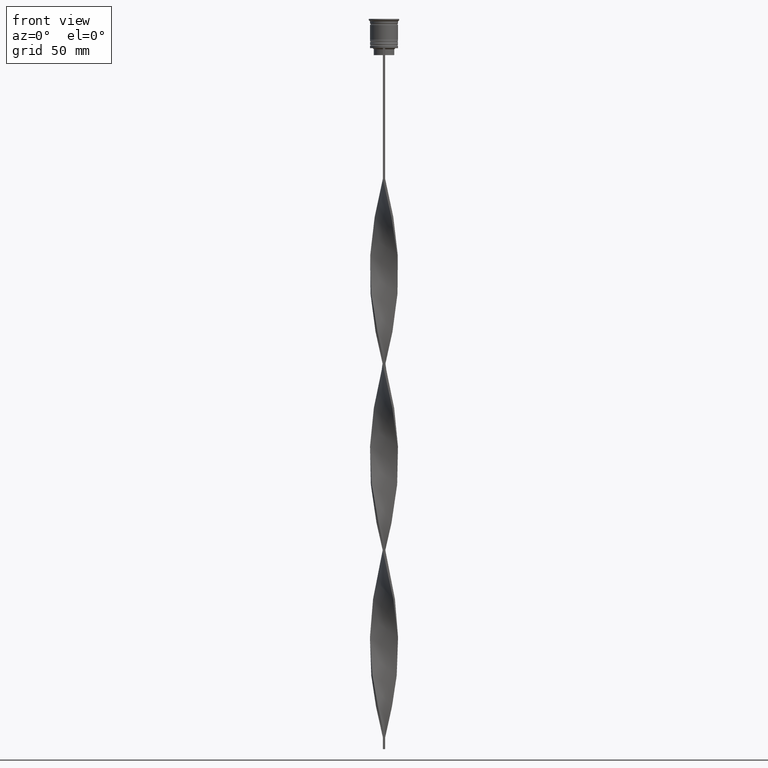
[diagram: clean part render]
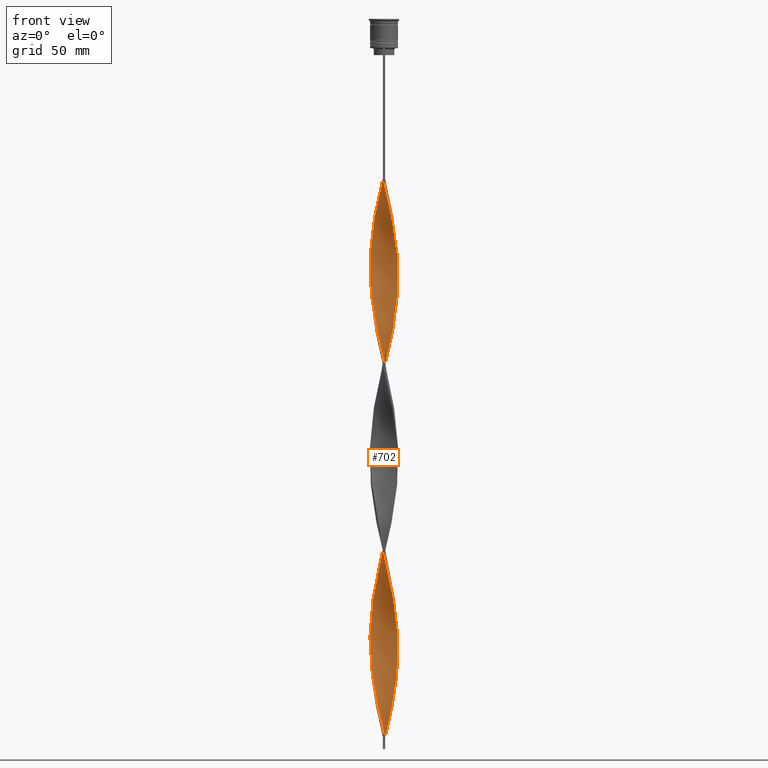
[diagram: same view with one face highlighted and labeled with its STEP entity id]
A machine part, front view. The second image highlights one B-rep face of the part: STEP entity #702.
In plain terms, the highlighted face is a freeform B-spline surface patch.
Its self-contained STEP definition (entity closure, byte-faithful):
#5 = CARTESIAN_POINT ( 'NONE',  ( -5.573034394999981878, -2.278439736343095934, -199.9500000000000171 ) ) ;
#14 = CARTESIAN_POINT ( 'NONE',  ( -0.4999999999999997780, 6.000000000000000000, -227.8333333333333428 ) ) ;
#23 = CARTESIAN_POINT ( 'NONE',  ( 3.931220010942312992, 4.560209340103447140, -291.5666666666667197 ) ) ;
#24 = CARTESIAN_POINT ( 'NONE',  ( 0.9173149989399209669, 5.969343698769574935, -221.8583333333333769 ) ) ;
#34 = CARTESIAN_POINT ( 'NONE',  ( -2.329630224397260641, 5.551830600583447684, -235.8000000000000114 ) ) ;
#41 = CARTESIAN_POINT ( 'NONE',  ( -5.573034394999980101, 2.278439736343096822, -96.38333333333335418 ) ) ;
#51 = CARTESIAN_POINT ( 'NONE',  ( 5.960649146587692293, -0.9722102409477109131, -265.6750000000000682 ) ) ;
#56 = CARTESIAN_POINT ( 'NONE',  ( 5.847912811050711035, -1.432450960538954376, -104.3499999999999943 ) ) ;
#59 = CARTESIAN_POINT ( 'NONE',  ( -3.527358977712831134, -4.902271885939097906, -289.5750000000000455 ) ) ;
#73 = CARTESIAN_POINT ( 'NONE',  ( 2.766568768664326328, 5.368484725653163814, -297.5416666666666856 ) ) ;
#76 = CARTESIAN_POINT ( 'NONE',  ( 1.432450960538954376, 5.847912811050710147, -144.1833333333333371 ) ) ;
#90 = CARTESIAN_POINT ( 'NONE',  ( 1.432450960538954376, 5.847912811050710147, -303.5166666666666515 ) ) ;
#95 = CARTESIAN_POINT ( 'NONE',  ( 5.393717298852746644, 2.717047055421899948, -122.2750000000000199 ) ) ;
#104 = CARTESIAN_POINT ( 'NONE',  ( -2.717047055421900836, -5.393717298852744868, -134.2249999999999943 ) ) ;
#116 = CARTESIAN_POINT ( 'NONE',  ( -1.839832417264293252, 5.752351491147217999, -158.1250000000000284 ) ) ;
#126 = CARTESIAN_POINT ( 'NONE',  ( 0.4447626199438179939, 6.004347276090941321, -223.8500000000000227 ) ) ;
#134 = CARTESIAN_POINT ( 'NONE',  ( 1.892691680130198284, 5.735176475513732441, -142.1916666666666913 ) ) ;
#149 = CARTESIAN_POINT ( 'NONE',  ( 5.847912811050711035, -1.432450960538954376, -263.6833333333333940 ) ) ;
#152 = CARTESIAN_POINT ( 'NONE',  ( -1.839832417264294806, -5.752351491147217111, -297.5416666666666856 ) ) ;
#162 = CARTESIAN_POINT ( 'NONE',  ( -6.039350853412310371, -0.02778975905228876081, -265.6750000000000682 ) ) ;
#189 = CARTESIAN_POINT ( 'NONE',  ( 3.572323752398603780, -4.869603064867703779, -162.1083333333333769 ) ) ;
#191 = CARTESIAN_POINT ( 'NONE',  ( -5.368484725653163814, -2.766568768664325439, -277.6250000000000568 ) ) ;
#199 = CARTESIAN_POINT ( 'NONE',  ( -4.596194077712559611, -3.889087296526010373, -207.9166666666666572 ) ) ;
#209 = CARTESIAN_POINT ( 'NONE',  ( 5.393717298852746644, -2.717047055421898616, -174.0583333333333371 ) ) ;
#217 = CARTESIAN_POINT ( 'NONE',  ( 3.931220010942312992, 4.560209340103447140, -291.5666666666667197 ) ) ;
#218 = CARTESIAN_POINT ( 'NONE',  ( -2.278439736343095934, 5.573034394999980989, -160.1166666666666742 ) ) ;
#227 = CARTESIAN_POINT ( 'NONE',  ( 5.752351491147215334, -1.839832417264297248, -178.0416666666667140 ) ) ;
#238 = CARTESIAN_POINT ( 'NONE',  ( -3.931220010942313881, -4.560209340103447140, -211.9000000000000057 ) ) ;
#239 = CARTESIAN_POINT ( 'NONE',  ( 5.551830600583447684, -2.329630224397261085, -100.3666666666666742 ) ) ;
#240 = CARTESIAN_POINT ( 'NONE',  ( 6.000000000000000000, 0.4999999999999987232, -188.0000000000000000 ) ) ;
#250 = CARTESIAN_POINT ( 'NONE',  ( 5.119043895260435129, 3.169446260531463722, -199.9500000000000171 ) ) ;
#261 = CARTESIAN_POINT ( 'NONE',  ( -4.560209340103447140, 3.931220010942312992, -172.0666666666666629 ) ) ;
#262 = CARTESIAN_POINT ( 'NONE',  ( 3.169446260531463722, -5.119043895260434240, -160.1166666666666742 ) ) ;
#269 = CARTESIAN_POINT ( 'NONE',  ( 0.4999999999999990563, -6.000000000000000000, -148.1666666666666572 ) ) ;
#281 = CARTESIAN_POINT ( 'NONE',  ( -5.119043895260433352, 3.169446260531465498, -176.0500000000000114 ) ) ;
#282 = CARTESIAN_POINT ( 'NONE',  ( 5.735176475513733330, 1.892691680130193843, -193.9749999999999943 ) ) ;
#287 = CARTESIAN_POINT ( 'NONE',  ( -4.596194077712558723, 3.889087296526011706, -247.7500000000000284 ) ) ;
#307 = CARTESIAN_POINT ( 'NONE',  ( 0.9173149989399209669, 5.969343698769575823, -221.8583333333333769 ) ) ;
#317 = CARTESIAN_POINT ( 'NONE',  ( 5.573034394999980989, 2.278439736343096378, -279.6166666666666742 ) ) ;
#325 = CARTESIAN_POINT ( 'NONE',  ( 0.4999999999999990563, -6.000000000000000000, -307.5000000000000000 ) ) ;
#336 = CARTESIAN_POINT ( 'NONE',  ( 0.9173149989399222992, -5.969343698769574935, -233.8083333333333371 ) ) ;
#344 = CARTESIAN_POINT ( 'NONE',  ( -1.378573708102108331, -5.860847594958395135, -299.5333333333333030 ) ) ;
#349 = CARTESIAN_POINT ( 'NONE',  ( -3.572323752398604224, 4.869603064867704667, -82.44166666666666288 ) ) ;
#355 = CARTESIAN_POINT ( 'NONE',  ( -5.752351491147216223, -1.839832417264295694, -197.9583333333333997 ) ) ;
#358 = CARTESIAN_POINT ( 'NONE',  ( 3.572323752398604224, 4.869603064867703779, -134.2250000000000227 ) ) ;
#372 = CARTESIAN_POINT ( 'NONE',  ( -6.004347276090942209, 0.4447626199438168837, -104.3499999999999943 ) ) ;
#381 = CARTESIAN_POINT ( 'NONE',  ( 4.596194077712558723, 3.889087296526011261, -287.5833333333333712 ) ) ;
#386 = CARTESIAN_POINT ( 'NONE',  ( -1.378573708102106998, 5.860847594958396023, -156.1333333333333542 ) ) ;
#396 = CARTESIAN_POINT ( 'NONE',  ( -5.368484725653163814, -2.766568768664325439, -118.2916666666666998 ) ) ;
#402 = CARTESIAN_POINT ( 'NONE',  ( -1.432450960538955265, -5.847912811050710147, -223.8500000000000227 ) ) ;
#407 = CARTESIAN_POINT ( 'NONE',  ( -5.960649146587691405, 0.9722102409477143548, -186.0083333333333258 ) ) ;
#416 = CARTESIAN_POINT ( 'NONE',  ( -3.122203016567365985, -5.147994592395920499, -132.2333333333333485 ) ) ;
#427 = CARTESIAN_POINT ( 'NONE',  ( 4.560209340103448028, -3.931220010942312992, -92.40000000000000568 ) ) ;
#451 = CARTESIAN_POINT ( 'NONE',  ( 0.4447626199438165506, -6.004347276090942209, -72.48333333333334849 ) ) ;
#459 = CARTESIAN_POINT ( 'NONE',  ( 2.278439736343097710, 5.573034394999980101, -215.8833333333333542 ) ) ;
#462 = CARTESIAN_POINT ( 'NONE',  ( 0.5000000000000000000, 2.000000000000000000, -307.5000000000000000 ) ) ;
#468 = CARTESIAN_POINT ( 'NONE',  ( -5.393717298852746644, -2.717047055421897284, -201.9416666666667197 ) ) ;
#487 = CARTESIAN_POINT ( 'NONE',  ( 1.892691680130198284, 5.735176475513732441, -301.5250000000000341 ) ) ;
#495 = CARTESIAN_POINT ( 'NONE',  ( -6.039350853412310371, -0.02778975905228876081, -106.3416666666666686 ) ) ;
#506 = VERTEX_POINT ( 'NONE', #3381 ) ;
#507 = CARTESIAN_POINT ( 'NONE',  ( -5.969343698769576712, -0.9173149989399185245, -193.9750000000000227 ) ) ;
#519 = CARTESIAN_POINT ( 'NONE',  ( -5.119043895260434240, -3.169446260531464166, -120.2833333333333456 ) ) ;
#528 = CARTESIAN_POINT ( 'NONE',  ( 5.960649146587691405, -0.9722102409477109131, -265.6750000000000682 ) ) ;
#529 = CARTESIAN_POINT ( 'NONE',  ( 0.9722102409477113572, 5.960649146587692293, -146.1749999999999829 ) ) ;
#530 = CARTESIAN_POINT ( 'NONE',  ( 6.004347276090941321, -0.4447626199438176609, -184.0166666666666515 ) ) ;
#532 = CARTESIAN_POINT ( 'NONE',  ( 0.4999999999999990563, -6.000000000000000000, -307.5000000000000000 ) ) ;
#537 = CARTESIAN_POINT ( 'NONE',  ( -1.378573708102108331, -5.860847594958395135, -140.1999999999999886 ) ) ;
#539 = CARTESIAN_POINT ( 'NONE',  ( -5.573034394999980101, 2.278439736343096822, -255.7166666666666970 ) ) ;
#546 = CARTESIAN_POINT ( 'NONE',  ( -1.432450960538955265, -5.847912811050710147, -223.8500000000000227 ) ) ;
#547 = CARTESIAN_POINT ( 'NONE',  ( 3.931220010942312992, 4.560209340103447140, -132.2333333333333485 ) ) ;
#554 = CARTESIAN_POINT ( 'NONE',  ( 5.847912811050711035, 1.432450960538952600, -191.9833333333333485 ) ) ;
#567 = CARTESIAN_POINT ( 'NONE',  ( 1.432450960538954376, 5.847912811050710147, -144.1833333333333371 ) ) ;
#568 = CARTESIAN_POINT ( 'NONE',  ( 3.527358977712834243, 4.902271885939096130, -209.9083333333333883 ) ) ;
#579 = CARTESIAN_POINT ( 'NONE',  ( -1.839832417264294806, -5.752351491147217111, -138.2083333333333144 ) ) ;
#592 = CARTESIAN_POINT ( 'NONE',  ( 0.02778975905228979124, 6.039350853412310371, -150.1583333333333599 ) ) ;
#593 = CARTESIAN_POINT ( 'NONE',  ( 5.860847594958395135, -1.378573708102108775, -180.0333333333333599 ) ) ;
#599 = CARTESIAN_POINT ( 'NONE',  ( -3.931220010942312992, 4.560209340103448028, -243.7666666666666799 ) ) ;
#600 = EDGE_CURVE ( 'NONE', #2527, #506, #2360, .T. ) ;
#609 = CARTESIAN_POINT ( 'NONE',  ( -0.4999999999999997780, -6.000000000000000000, -68.50000000000000000 ) ) ;
#610 = CARTESIAN_POINT ( 'NONE',  ( 4.290116269486020428, -4.250815615339194942, -166.0916666666666686 ) ) ;
#625 = CARTESIAN_POINT ( 'NONE',  ( 5.119043895260433352, -3.169446260531464610, -255.7166666666666970 ) ) ;
#626 = CARTESIAN_POINT ( 'NONE',  ( -0.9722102409477106910, 5.960649146587692293, -229.8250000000000455 ) ) ;
#636 = CARTESIAN_POINT ( 'NONE',  ( -5.368484725653163814, -2.766568768664325439, -277.6250000000000568 ) ) ;
#648 = CARTESIAN_POINT ( 'NONE',  ( 2.717047055421899948, -5.393717298852745756, -241.7750000000000625 ) ) ;
#657 = CARTESIAN_POINT ( 'NONE',  ( -5.735176475513732441, -1.892691680130197174, -273.6416666666666515 ) ) ;
#667 = CARTESIAN_POINT ( 'NONE',  ( 5.735176475513732441, -1.892691680130197840, -261.6916666666666629 ) ) ;
#673 = CARTESIAN_POINT ( 'NONE',  ( -2.717047055421900836, -5.393717298852745756, -293.5583333333333940 ) ) ;
#685 = CARTESIAN_POINT ( 'NONE',  ( -2.766568768664328992, -5.368484725653162037, -217.8750000000000568 ) ) ;
#690 = CARTESIAN_POINT ( 'NONE',  ( 5.551830600583447684, -2.329630224397261085, -100.3666666666666742 ) ) ;
#702 = ADVANCED_FACE ( 'NONE', ( #3397 ), #710, .T. ) ;
#707 = CARTESIAN_POINT ( 'NONE',  ( -5.735176475513732441, -1.892691680130197174, -114.3083333333333655 ) ) ;
#710 =( BOUNDED_SURFACE ( )  B_SPLINE_SURFACE ( 1, 2, ( 
 ( #609, #2759, #2143, #870, #1491, #2803, #4060, #3456, #1221, #3440, #4041, #3072, #2844, #890, #2505, #3147, #239, #3778, #3714, #2824, #2444, #2785, #4103, #4077, #2482, #1886, #3753, #3417, #1260, #1536, #909, #2524, #547, #3115, #1827, #1556, #2216, #2181, #567, #529, #2157, #592, #1202, #1851, #1181, #4018, #218, #1809, #3091, #1870, #1513, #2465, #261, #3132, #281, #1238, #933, #2199, #1907, #970, #3878, #3206, #2865, #2950, #1298, #355, #5, #1012, #3516, #1631, #2908, #3561, #3811, #2236, #3839, #685, #2274, #993, #402, #3497, #2255, #1595, #1030, #336, #1058, #1338, #2563, #648, #1611, #1972, #1359, #3168, #1946, #2608, #625, #1277, #3536, #667, #3185, #51, #1320, #2587, #716, #2540, #1927, #2886, #317, #3857, #3232, #2294, #381, #1660, #23, #2929, #3256, #73, #2000, #1680, #90, #2634, #3899 ),
 ( #3473, #1401, #2671, #1962, #2349, #1939, #3199, #349, #3552, #2578, #1622, #3872, #2899, #1050, #41, #2625, #1650, #3221, #372, #3248, #1352, #2601, #3595, #707, #1992, #396, #2943, #2013, #2314, #3268, #3577, #1377, #416, #104, #2654, #1690, #3913, #1072, #2329, #3678, #3336, #824, #2101, #3358, #1790, #871, #262, #1203, #1239, #610, #2846, #1261, #1492, #1887, #1828, #910, #593, #2507, #530, #3092, #240, #3441, #1576, #282, #1537, #1557, #2825, #4078, #1515, #2786, #4042, #568, #850, #3003, #459, #3812, #1379, #24, #126, #3929, #3794, #626, #1908, #1090, #3499, #2331, #3596, #3186, #2564, #1051, #1719, #2430, #1754, #3704, #539, #1194, #2454, #3725, #3657, #162, #3346, #2712, #814, #2093, #1774, #191, #852, #3941, #803, #1792, #1476, #1157, #826, #1765, #3034, #152, #2104, #2422, #1102, #3360, #532 ) ),
 .UNSPECIFIED., .F., .F., .F. ) 
 B_SPLINE_SURFACE_WITH_KNOTS ( ( 2, 2 ),
 ( 3, 2, 2, 2, 2, 2, 2, 2, 2, 2, 2, 2, 2, 2, 2, 2, 2, 2, 2, 2, 2, 2, 2, 2, 2, 2, 2, 2, 2, 2, 2, 2, 2, 2, 2, 2, 2, 2, 2, 2, 2, 2, 2, 2, 2, 2, 2, 2, 2, 2, 2, 2, 2, 2, 2, 2, 2, 2, 2, 2, 3 ),
 ( 0.000000000000000000, 1.000000000000000000 ),
 ( 0.000000000000000000, 0.01250000000000000069, 0.02500000000000000139, 0.03749999999999999861, 0.05000000000000000278, 0.06250000000000000000, 0.07499999999999999722, 0.08749999999999999445, 0.1000000000000000056, 0.1125000000000000028, 0.1250000000000000000, 0.1375000000000000111, 0.1499999999999999944, 0.1625000000000000056, 0.1749999999999999889, 0.1875000000000000000, 0.2000000000000000111, 0.2124999999999999944, 0.2250000000000000056, 0.2374999999999999889, 0.2500000000000000000, 0.2625000000000000111, 0.2750000000000000222, 0.2874999999999999778, 0.2999999999999999889, 0.3125000000000000000, 0.3250000000000000111, 0.3375000000000000222, 0.3499999999999999778, 0.3624999999999999889, 0.3750000000000000000, 0.3875000000000000111, 0.4000000000000000222, 0.4124999999999999778, 0.4249999999999999889, 0.4375000000000000000, 0.4500000000000000111, 0.4625000000000000222, 0.4749999999999999778, 0.4874999999999999889, 0.5000000000000000000, 0.5124999999999999556, 0.5250000000000000222, 0.5374999999999999778, 0.5500000000000000444, 0.5625000000000000000, 0.5749999999999999556, 0.5875000000000000222, 0.5999999999999999778, 0.6125000000000000444, 0.6250000000000000000, 0.6374999999999999556, 0.6500000000000000222, 0.6624999999999999778, 0.6750000000000000444, 0.6875000000000000000, 0.6999999999999999556, 0.7125000000000000222, 0.7249999999999999778, 0.7375000000000000444, 0.7500000000000000000 ),
 .UNSPECIFIED. ) 
 GEOMETRIC_REPRESENTATION_ITEM ( )  RATIONAL_B_SPLINE_SURFACE ( (
 ( 1.000000000000000000, 0.9969173337331279638, 1.000000000000000000, 0.9969173337331279638, 1.000000000000000000, 0.9969173337331279638, 1.000000000000000000, 0.9969173337331279638, 1.000000000000000000, 0.9969173337331279638, 1.000000000000000000, 0.9969173337331279638, 1.000000000000000000, 0.9969173337331279638, 1.000000000000000000, 0.9969173337331279638, 1.000000000000000000, 0.9969173337331279638, 1.000000000000000000, 0.9969173337331279638, 1.000000000000000000, 0.9969173337331279638, 1.000000000000000000, 0.9969173337331279638, 1.000000000000000000, 0.9969173337331279638, 1.000000000000000000, 0.9969173337331279638, 1.000000000000000000, 0.9969173337331279638, 1.000000000000000000, 0.9969173337331279638, 1.000000000000000000, 0.9969173337331279638, 1.000000000000000000, 0.9969173337331279638, 1.000000000000000000, 0.9969173337331279638, 1.000000000000000000, 0.9969173337331279638, 1.000000000000000000, 0.9969173337331279638, 1.000000000000000000, 0.9969173337331279638, 1.000000000000000000, 0.9969173337331279638, 1.000000000000000000, 0.9969173337331279638, 1.000000000000000000, 0.9969173337331279638, 1.000000000000000000, 0.9969173337331279638, 1.000000000000000000, 0.9969173337331279638, 1.000000000000000000, 0.9969173337331279638, 1.000000000000000000, 0.9969173337331279638, 1.000000000000000000, 0.9969173337331279638, 1.000000000000000000, 0.9969173337331279638, 1.000000000000000000, 0.9969173337331279638, 1.000000000000000000, 0.9969173337331279638, 1.000000000000000000, 0.9969173337331279638, 1.000000000000000000, 0.9969173337331279638, 1.000000000000000000, 0.9969173337331279638, 1.000000000000000000, 0.9969173337331279638, 1.000000000000000000, 0.9969173337331279638, 1.000000000000000000, 0.9969173337331279638, 1.000000000000000000, 0.9969173337331279638, 1.000000000000000000, 0.9969173337331279638, 1.000000000000000000, 0.9969173337331279638, 1.000000000000000000, 0.9969173337331279638, 1.000000000000000000, 0.9969173337331279638, 1.000000000000000000, 0.9969173337331279638, 1.000000000000000000, 0.9969173337331279638, 1.000000000000000000, 0.9969173337331279638, 1.000000000000000000, 0.9969173337331279638, 1.000000000000000000, 0.9969173337331279638, 1.000000000000000000, 0.9969173337331279638, 1.000000000000000000, 0.9969173337331279638, 1.000000000000000000, 0.9969173337331279638, 1.000000000000000000, 0.9969173337331279638, 1.000000000000000000, 0.9969173337331279638, 1.000000000000000000, 0.9969173337331279638, 1.000000000000000000, 0.9969173337331279638, 1.000000000000000000, 0.9969173337331279638, 1.000000000000000000, 0.9969173337331279638, 1.000000000000000000, 0.9969173337331279638, 1.000000000000000000, 0.9969173337331279638, 1.000000000000000000),
 ( 1.000000000000000000, 0.9969173337331279638, 1.000000000000000000, 0.9969173337331279638, 1.000000000000000000, 0.9969173337331279638, 1.000000000000000000, 0.9969173337331279638, 1.000000000000000000, 0.9969173337331279638, 1.000000000000000000, 0.9969173337331279638, 1.000000000000000000, 0.9969173337331279638, 1.000000000000000000, 0.9969173337331279638, 1.000000000000000000, 0.9969173337331279638, 1.000000000000000000, 0.9969173337331279638, 1.000000000000000000, 0.9969173337331279638, 1.000000000000000000, 0.9969173337331279638, 1.000000000000000000, 0.9969173337331279638, 1.000000000000000000, 0.9969173337331279638, 1.000000000000000000, 0.9969173337331279638, 1.000000000000000000, 0.9969173337331279638, 1.000000000000000000, 0.9969173337331279638, 1.000000000000000000, 0.9969173337331279638, 1.000000000000000000, 0.9969173337331279638, 1.000000000000000000, 0.9969173337331279638, 1.000000000000000000, 0.9969173337331279638, 1.000000000000000000, 0.9969173337331279638, 1.000000000000000000, 0.9969173337331279638, 1.000000000000000000, 0.9969173337331279638, 1.000000000000000000, 0.9969173337331279638, 1.000000000000000000, 0.9969173337331279638, 1.000000000000000000, 0.9969173337331279638, 1.000000000000000000, 0.9969173337331279638, 1.000000000000000000, 0.9969173337331279638, 1.000000000000000000, 0.9969173337331279638, 1.000000000000000000, 0.9969173337331279638, 1.000000000000000000, 0.9969173337331279638, 1.000000000000000000, 0.9969173337331279638, 1.000000000000000000, 0.9969173337331279638, 1.000000000000000000, 0.9969173337331279638, 1.000000000000000000, 0.9969173337331279638, 1.000000000000000000, 0.9969173337331279638, 1.000000000000000000, 0.9969173337331279638, 1.000000000000000000, 0.9969173337331279638, 1.000000000000000000, 0.9969173337331279638, 1.000000000000000000, 0.9969173337331279638, 1.000000000000000000, 0.9969173337331279638, 1.000000000000000000, 0.9969173337331279638, 1.000000000000000000, 0.9969173337331279638, 1.000000000000000000, 0.9969173337331279638, 1.000000000000000000, 0.9969173337331279638, 1.000000000000000000, 0.9969173337331279638, 1.000000000000000000, 0.9969173337331279638, 1.000000000000000000, 0.9969173337331279638, 1.000000000000000000, 0.9969173337331279638, 1.000000000000000000, 0.9969173337331279638, 1.000000000000000000, 0.9969173337331279638, 1.000000000000000000, 0.9969173337331279638, 1.000000000000000000, 0.9969173337331279638, 1.000000000000000000, 0.9969173337331279638, 1.000000000000000000, 0.9969173337331279638, 1.000000000000000000, 0.9969173337331279638, 1.000000000000000000, 0.9969173337331279638, 1.000000000000000000, 0.9969173337331279638, 1.000000000000000000, 0.9969173337331279638, 1.000000000000000000) ) ) 
 REPRESENTATION_ITEM ( '' )  SURFACE ( )  );
#716 = CARTESIAN_POINT ( 'NONE',  ( 6.004347276090942209, 0.4447626199438162731, -271.6499999999999773 ) ) ;
#720 = VERTEX_POINT ( 'NONE', #3056 ) ;
#721 = CARTESIAN_POINT ( 'NONE',  ( 5.735176475513732441, -1.892691680130197840, -102.3583333333333485 ) ) ;
#729 = CARTESIAN_POINT ( 'NONE',  ( -0.4999999999999997780, 6.000000000000000888, -68.50000000000000000 ) ) ;
#740 = CARTESIAN_POINT ( 'NONE',  ( 0.9173149989399222992, -5.969343698769575823, -74.47500000000000853 ) ) ;
#755 = CARTESIAN_POINT ( 'NONE',  ( 4.902271885939097906, 3.527358977712830246, -126.2583333333333400 ) ) ;
#756 = DIRECTION ( 'NONE',  ( 0.000000000000000000, 1.000000000000000000, 0.000000000000000000 ) ) ;
#781 = CARTESIAN_POINT ( 'NONE',  ( 0.4447626199438165506, -6.004347276090942209, -231.8166666666666629 ) ) ;
#800 = CARTESIAN_POINT ( 'NONE',  ( -5.860847594958396023, -1.378573708102106776, -195.9666666666666686 ) ) ;
#803 = CARTESIAN_POINT ( 'NONE',  ( -4.560209340103448916, -3.931220010942312104, -283.6000000000000227 ) ) ;
#812 = CARTESIAN_POINT ( 'NONE',  ( -3.572323752398604224, 4.869603064867703779, -82.44166666666667709 ) ) ;
#814 = CARTESIAN_POINT ( 'NONE',  ( -5.847912811050711035, -1.432450960538953488, -271.6499999999999773 ) ) ;
#822 = CARTESIAN_POINT ( 'NONE',  ( -1.892691680130196286, -5.735176475513732441, -221.8583333333333769 ) ) ;
#824 = CARTESIAN_POINT ( 'NONE',  ( 0.9722102409477099139, -5.960649146587692293, -150.1583333333333599 ) ) ;
#826 = CARTESIAN_POINT ( 'NONE',  ( -3.122203016567365985, -5.147994592395920499, -291.5666666666667197 ) ) ;
#835 = CARTESIAN_POINT ( 'NONE',  ( 4.290116269486020428, -4.250815615339194942, -166.0916666666666970 ) ) ;
#847 = CARTESIAN_POINT ( 'NONE',  ( 2.717047055421899948, -5.393717298852746644, -241.7750000000000341 ) ) ;
#850 = CARTESIAN_POINT ( 'NONE',  ( 3.122203016567366873, 5.147994592395920499, -211.9000000000000057 ) ) ;
#852 = CARTESIAN_POINT ( 'NONE',  ( -5.119043895260434240, -3.169446260531464166, -279.6166666666666742 ) ) ;
#859 = CARTESIAN_POINT ( 'NONE',  ( -4.596194077712558723, 3.889087296526011706, -88.41666666666667140 ) ) ;
#869 = CARTESIAN_POINT ( 'NONE',  ( 4.869603064867703779, -3.572323752398604224, -253.7250000000000227 ) ) ;
#870 = CARTESIAN_POINT ( 'NONE',  ( 0.9173149989399222992, -5.969343698769574935, -74.47500000000002274 ) ) ;
#871 = CARTESIAN_POINT ( 'NONE',  ( 2.766568768664324995, -5.368484725653164702, -158.1250000000000000 ) ) ;
#878 = CARTESIAN_POINT ( 'NONE',  ( 6.004347276090941321, -0.4447626199438176609, -184.0166666666666515 ) ) ;
#890 = CARTESIAN_POINT ( 'NONE',  ( 4.869603064867703779, -3.572323752398604224, -94.39166666666669414 ) ) ;
#896 = CARTESIAN_POINT ( 'NONE',  ( 0.02778975905228832713, -6.039350853412310371, -146.1750000000000114 ) ) ;
#909 = CARTESIAN_POINT ( 'NONE',  ( 4.596194077712558723, 3.889087296526011261, -128.2500000000000000 ) ) ;
#910 = CARTESIAN_POINT ( 'NONE',  ( 5.752351491147215334, -1.839832417264297471, -178.0416666666667140 ) ) ;
#933 = CARTESIAN_POINT ( 'NONE',  ( -5.551830600583447684, 2.329630224397261973, -180.0333333333333599 ) ) ;
#940 = CARTESIAN_POINT ( 'NONE',  ( 0.02778975905228832713, -6.039350853412310371, -305.5083333333334394 ) ) ;
#956 = CARTESIAN_POINT ( 'NONE',  ( -4.250815615339194053, -4.290116269486020428, -285.5916666666666970 ) ) ;
#970 = CARTESIAN_POINT ( 'NONE',  ( -5.960649146587692293, 0.9722102409477144658, -186.0083333333333258 ) ) ;
#993 = CARTESIAN_POINT ( 'NONE',  ( -1.892691680130196286, -5.735176475513732441, -221.8583333333333769 ) ) ;
#1001 = CARTESIAN_POINT ( 'NONE',  ( 2.278439736343097710, 5.573034394999980101, -215.8833333333333542 ) ) ;
#1012 = CARTESIAN_POINT ( 'NONE',  ( -5.393717298852745756, -2.717047055421897284, -201.9416666666667197 ) ) ;
#1018 = CARTESIAN_POINT ( 'NONE',  ( 0.5000000000000005551, 6.000000000000000000, -148.1666666666666572 ) ) ;
#1030 = CARTESIAN_POINT ( 'NONE',  ( 0.4447626199438165506, -6.004347276090942209, -231.8166666666666629 ) ) ;
#1036 = CARTESIAN_POINT ( 'NONE',  ( 2.766568768664326328, 5.368484725653163814, -138.2083333333333144 ) ) ;
#1050 = CARTESIAN_POINT ( 'NONE',  ( -5.393717298852744868, 2.717047055421900836, -94.39166666666669414 ) ) ;
#1051 = CARTESIAN_POINT ( 'NONE',  ( -4.290116269486021316, 4.250815615339194053, -245.7583333333333826 ) ) ;
#1058 = CARTESIAN_POINT ( 'NONE',  ( 1.378573708102107886, -5.860847594958395135, -235.8000000000000114 ) ) ;
#1062 = ORIENTED_EDGE ( 'NONE', *, *, #2202, .F. ) ;
#1063 = CARTESIAN_POINT ( 'NONE',  ( -5.847912811050710147, 1.432450960538954821, -184.0166666666666515 ) ) ;
#1072 = CARTESIAN_POINT ( 'NONE',  ( -0.9173149989399231874, -5.969343698769574935, -142.1916666666666913 ) ) ;
#1081 = CARTESIAN_POINT ( 'NONE',  ( 2.329630224397261529, 5.551830600583447684, -140.1999999999999886 ) ) ;
#1090 = CARTESIAN_POINT ( 'NONE',  ( -1.892691680130197396, 5.735176475513732441, -233.8083333333333371 ) ) ;
#1099 = CARTESIAN_POINT ( 'NONE',  ( 1.378573708102107886, -5.860847594958395135, -76.46666666666666856 ) ) ;
#1102 = CARTESIAN_POINT ( 'NONE',  ( -0.4447626199438173278, -6.004347276090941321, -303.5166666666666515 ) ) ;
#1121 = CARTESIAN_POINT ( 'NONE',  ( 3.527358977712831134, -4.902271885939097906, -245.7583333333333826 ) ) ;
#1137 = CARTESIAN_POINT ( 'NONE',  ( 0.5000000000000005551, 6.000000000000000000, -307.5000000000000000 ) ) ;
#1146 = CARTESIAN_POINT ( 'NONE',  ( -5.969343698769575823, 0.9173149989399227433, -102.3583333333333485 ) ) ;
#1157 = CARTESIAN_POINT ( 'NONE',  ( -3.527358977712831134, -4.902271885939097906, -289.5750000000000455 ) ) ;
#1166 = CARTESIAN_POINT ( 'NONE',  ( -5.368484725653163814, -2.766568768664325439, -118.2916666666666998 ) ) ;
#1180 = CARTESIAN_POINT ( 'NONE',  ( 5.752351491147217111, 1.839832417264293918, -277.6250000000000568 ) ) ;
#1181 = CARTESIAN_POINT ( 'NONE',  ( -1.378573708102106998, 5.860847594958396023, -156.1333333333333542 ) ) ;
#1190 = CARTESIAN_POINT ( 'NONE',  ( -4.290116269486021316, 4.250815615339194053, -86.42499999999999716 ) ) ;
#1194 = CARTESIAN_POINT ( 'NONE',  ( -5.752351491147217111, 1.839832417264294362, -257.7083333333333144 ) ) ;
#1201 = CARTESIAN_POINT ( 'NONE',  ( 5.119043895260433352, -3.169446260531464610, -255.7166666666666970 ) ) ;
#1202 = CARTESIAN_POINT ( 'NONE',  ( -0.4447626199438157180, 6.004347276090942209, -152.1500000000000057 ) ) ;
#1203 = CARTESIAN_POINT ( 'NONE',  ( 3.572323752398603336, -4.869603064867704667, -162.1083333333333769 ) ) ;
#1209 = CARTESIAN_POINT ( 'NONE',  ( 4.250815615339193165, 4.290116269486022205, -205.9250000000000114 ) ) ;
#1217 = ORIENTED_EDGE ( 'NONE', *, *, #3623, .F. ) ;
#1221 = CARTESIAN_POINT ( 'NONE',  ( 3.122203016567365541, -5.147994592395921387, -84.43333333333333712 ) ) ;
#1227 = CARTESIAN_POINT ( 'NONE',  ( -5.960649146587691405, -0.9722102409477102469, -110.3250000000000171 ) ) ;
#1238 = CARTESIAN_POINT ( 'NONE',  ( -5.368484725653162037, 2.766568768664328548, -178.0416666666667140 ) ) ;
#1239 = CARTESIAN_POINT ( 'NONE',  ( 3.931220010942312104, -4.560209340103448916, -164.1000000000000227 ) ) ;
#1250 = CARTESIAN_POINT ( 'NONE',  ( -6.039350853412310371, -0.02778975905228876081, -265.6750000000000682 ) ) ;
#1260 = CARTESIAN_POINT ( 'NONE',  ( 5.147994592395920499, 3.122203016567364653, -124.2666666666666799 ) ) ;
#1261 = CARTESIAN_POINT ( 'NONE',  ( 4.902271885939097018, -3.527358977712834243, -170.0750000000000455 ) ) ;
#1268 = CARTESIAN_POINT ( 'NONE',  ( -5.119043895260434240, -3.169446260531464166, -279.6166666666666742 ) ) ;
#1277 = CARTESIAN_POINT ( 'NONE',  ( 5.368484725653163814, -2.766568768664325884, -257.7083333333333144 ) ) ;
#1298 = CARTESIAN_POINT ( 'NONE',  ( -5.860847594958396023, -1.378573708102106776, -195.9666666666666686 ) ) ;
#1307 = CARTESIAN_POINT ( 'NONE',  ( -5.393717298852745756, 2.717047055421900836, -253.7250000000000227 ) ) ;
#1320 = CARTESIAN_POINT ( 'NONE',  ( 6.000000000000000000, -0.5000000000000001110, -267.6666666666667425 ) ) ;
#1325 = CARTESIAN_POINT ( 'NONE',  ( 5.969343698769575823, 0.9173149989399217441, -114.3083333333333655 ) ) ;
#1338 = CARTESIAN_POINT ( 'NONE',  ( 1.839832417264294362, -5.752351491147217111, -237.7916666666667140 ) ) ;
#1345 = CARTESIAN_POINT ( 'NONE',  ( 3.931220010942312992, 4.560209340103447140, -132.2333333333333485 ) ) ;
#1352 = CARTESIAN_POINT ( 'NONE',  ( -6.000000000000000000, -0.4999999999999994449, -108.3333333333333428 ) ) ;
#1359 = CARTESIAN_POINT ( 'NONE',  ( 3.889087296526011706, -4.596194077712558723, -247.7500000000000284 ) ) ;
#1365 = CARTESIAN_POINT ( 'NONE',  ( 5.147994592395920499, 3.122203016567364653, -124.2666666666666799 ) ) ;
#1377 = CARTESIAN_POINT ( 'NONE',  ( -3.527358977712831134, -4.902271885939097906, -130.2416666666667027 ) ) ;
#1379 = CARTESIAN_POINT ( 'NONE',  ( 1.378573708102109663, 5.860847594958395135, -219.8666666666666742 ) ) ;
#1389 = CARTESIAN_POINT ( 'NONE',  ( 2.278439736343096378, -5.573034394999980989, -80.45000000000000284 ) ) ;
#1401 = CARTESIAN_POINT ( 'NONE',  ( -0.9722102409477106910, 5.960649146587692293, -70.49166666666670267 ) ) ;
#1409 = CARTESIAN_POINT ( 'NONE',  ( 0.02778975905228979124, 6.039350853412310371, -150.1583333333333599 ) ) ;
#1411 =( BOUNDED_CURVE ( )  B_SPLINE_CURVE ( 2, ( #729, #3971, #2941, #2623, #2012, #3266, #1523, #812, #1773, #1190, #859, #3370, #1482, #2131, #3700, #3743, #3042, #1146, #3991, #495, #1816, #1227, #3655, #1462, #4007, #1166, #519, #3676, #1544, #3081, #2112, #4066, #1799, #2811, #3428, #579, #537, #2730, #3723, #896, #269, #2168, #2091, #3343, #1861, #2429, #2409, #189, #2749, #835, #2771, #3062, #1502, #209, #3387, #227, #4028, #2451, #878, #2471, #2149, #3404, #554, #3122, #1838, #3103, #250, #2792, #4048, #1209, #2263, #1562, #3784, #3524, #1001, #1875, #1956, #307, #3482, #3137, #14, #2832, #3176, #4111, #34, #2573, #1642, #2919, #599, #3846, #287, #3823, #3506, #1307, #3448, #2190, #1892, #2245, #4088, #1250, #2855, #1586, #2547, #657, #1935, #636, #1268, #2532, #2515, #956, #3195, #59, #2222, #673, #3801, #2491, #344, #3155, #3216, #940, #2205 ),
 .UNSPECIFIED., .F., .T. ) 
 B_SPLINE_CURVE_WITH_KNOTS ( ( 3, 2, 2, 2, 2, 2, 2, 2, 2, 2, 2, 2, 2, 2, 2, 2, 2, 2, 2, 2, 2, 2, 2, 2, 2, 2, 2, 2, 2, 2, 2, 2, 2, 2, 2, 2, 2, 2, 2, 2, 2, 2, 2, 2, 2, 2, 2, 2, 2, 2, 2, 2, 2, 2, 2, 2, 2, 2, 2, 2, 3 ),
 ( 0.000000000000000000, 0.01250000000000000243, 0.02500000000000000486, 0.03749999999999999861, 0.05000000000000000971, 0.06250000000000000000, 0.07499999999999999722, 0.08749999999999998057, 0.1000000000000000194, 0.1125000000000000028, 0.1250000000000000000, 0.1375000000000000111, 0.1499999999999999944, 0.1625000000000000056, 0.1749999999999999611, 0.1875000000000000000, 0.2000000000000000389, 0.2124999999999999944, 0.2250000000000000056, 0.2374999999999999611, 0.2500000000000000000, 0.2625000000000000111, 0.2750000000000000222, 0.2874999999999999778, 0.2999999999999999889, 0.3125000000000000000, 0.3250000000000000111, 0.3375000000000000777, 0.3499999999999999223, 0.3624999999999999889, 0.3750000000000000000, 0.3875000000000000111, 0.4000000000000000777, 0.4124999999999999223, 0.4249999999999999889, 0.4375000000000000000, 0.4500000000000000111, 0.4625000000000000777, 0.4749999999999999223, 0.4874999999999999889, 0.5000000000000000000, 0.5124999999999999556, 0.5250000000000000222, 0.5374999999999999778, 0.5500000000000000444, 0.5625000000000000000, 0.5749999999999999556, 0.5875000000000000222, 0.5999999999999999778, 0.6125000000000000444, 0.6250000000000000000, 0.6374999999999999556, 0.6500000000000000222, 0.6624999999999999778, 0.6750000000000001554, 0.6875000000000000000, 0.6999999999999998446, 0.7125000000000000222, 0.7249999999999999778, 0.7375000000000001554, 0.7500000000000000000 ),
 .UNSPECIFIED. ) 
 CURVE ( )  GEOMETRIC_REPRESENTATION_ITEM ( )  RATIONAL_B_SPLINE_CURVE ( ( 1.000000000000000000, 0.9969173337331279638, 1.000000000000000000, 0.9969173337331279638, 1.000000000000000000, 0.9969173337331279638, 1.000000000000000000, 0.9969173337331279638, 1.000000000000000000, 0.9969173337331279638, 1.000000000000000000, 0.9969173337331279638, 1.000000000000000000, 0.9969173337331279638, 1.000000000000000000, 0.9969173337331279638, 1.000000000000000000, 0.9969173337331279638, 1.000000000000000000, 0.9969173337331279638, 1.000000000000000000, 0.9969173337331279638, 1.000000000000000000, 0.9969173337331279638, 1.000000000000000000, 0.9969173337331279638, 1.000000000000000000, 0.9969173337331279638, 1.000000000000000000, 0.9969173337331279638, 1.000000000000000000, 0.9969173337331279638, 1.000000000000000000, 0.9969173337331279638, 1.000000000000000000, 0.9969173337331279638, 1.000000000000000000, 0.9969173337331279638, 1.000000000000000000, 0.9969173337331279638, 1.000000000000000000, 0.9969173337331279638, 1.000000000000000000, 0.9969173337331279638, 1.000000000000000000, 0.9969173337331279638, 1.000000000000000000, 0.9969173337331279638, 1.000000000000000000, 0.9969173337331279638, 1.000000000000000000, 0.9969173337331279638, 1.000000000000000000, 0.9969173337331279638, 1.000000000000000000, 0.9969173337331279638, 1.000000000000000000, 0.9969173337331279638, 1.000000000000000000, 0.9969173337331279638, 1.000000000000000000, 0.9969173337331279638, 1.000000000000000000, 0.9969173337331279638, 1.000000000000000000, 0.9969173337331279638, 1.000000000000000000, 0.9969173337331279638, 1.000000000000000000, 0.9969173337331279638, 1.000000000000000000, 0.9969173337331279638, 1.000000000000000000, 0.9969173337331279638, 1.000000000000000000, 0.9969173337331279638, 1.000000000000000000, 0.9969173337331279638, 1.000000000000000000, 0.9969173337331279638, 1.000000000000000000, 0.9969173337331279638, 1.000000000000000000, 0.9969173337331279638, 1.000000000000000000, 0.9969173337331279638, 1.000000000000000000, 0.9969173337331279638, 1.000000000000000000, 0.9969173337331279638, 1.000000000000000000, 0.9969173337331279638, 1.000000000000000000, 0.9969173337331279638, 1.000000000000000000, 0.9969173337331279638, 1.000000000000000000, 0.9969173337331279638, 1.000000000000000000, 0.9969173337331279638, 1.000000000000000000, 0.9969173337331279638, 1.000000000000000000, 0.9969173337331279638, 1.000000000000000000, 0.9969173337331279638, 1.000000000000000000, 0.9969173337331279638, 1.000000000000000000, 0.9969173337331279638, 1.000000000000000000, 0.9969173337331279638, 1.000000000000000000, 0.9969173337331279638, 1.000000000000000000, 0.9969173337331279638, 1.000000000000000000, 0.9969173337331279638, 1.000000000000000000, 0.9969173337331279638, 1.000000000000000000 ) ) 
 REPRESENTATION_ITEM ( '' )  );
#1427 = CARTESIAN_POINT ( 'NONE',  ( 3.122203016567365541, -5.147994592395921387, -243.7666666666666799 ) ) ;
#1462 = CARTESIAN_POINT ( 'NONE',  ( -5.735176475513732441, -1.892691680130197174, -114.3083333333333655 ) ) ;
#1471 = CARTESIAN_POINT ( 'NONE',  ( 3.889087296526011706, -4.596194077712558723, -247.7500000000000284 ) ) ;
#1476 = CARTESIAN_POINT ( 'NONE',  ( -3.889087296526012150, -4.596194077712557835, -287.5833333333333712 ) ) ;
#1482 = CARTESIAN_POINT ( 'NONE',  ( -5.147994592395921387, 3.122203016567365541, -92.40000000000000568 ) ) ;
#1490 = CARTESIAN_POINT ( 'NONE',  ( 2.766568768664326328, 5.368484725653163814, -297.5416666666666856 ) ) ;
#1491 = CARTESIAN_POINT ( 'NONE',  ( 1.378573708102107886, -5.860847594958395135, -76.46666666666666856 ) ) ;
#1492 = CARTESIAN_POINT ( 'NONE',  ( 5.147994592395920499, -3.122203016567365985, -172.0666666666666629 ) ) ;
#1502 = CARTESIAN_POINT ( 'NONE',  ( 5.147994592395920499, -3.122203016567365985, -172.0666666666666629 ) ) ;
#1512 = CARTESIAN_POINT ( 'NONE',  ( 5.573034394999980989, 2.278439736343096378, -279.6166666666666742 ) ) ;
#1513 = CARTESIAN_POINT ( 'NONE',  ( -3.889087296526011261, 4.596194077712559611, -168.0833333333333712 ) ) ;
#1515 = CARTESIAN_POINT ( 'NONE',  ( 4.560209340103449804, 3.931220010942311216, -203.9333333333333655 ) ) ;
#1523 = CARTESIAN_POINT ( 'NONE',  ( -3.169446260531464166, 5.119043895260434240, -80.45000000000000284 ) ) ;
#1536 = CARTESIAN_POINT ( 'NONE',  ( 4.902271885939097906, 3.527358977712830246, -126.2583333333333258 ) ) ;
#1537 = CARTESIAN_POINT ( 'NONE',  ( 5.551830600583448572, 2.329630224397259752, -195.9666666666666686 ) ) ;
#1544 = CARTESIAN_POINT ( 'NONE',  ( -4.560209340103448916, -3.931220010942312104, -124.2666666666666799 ) ) ;
#1556 = CARTESIAN_POINT ( 'NONE',  ( 2.766568768664326328, 5.368484725653163814, -138.2083333333333144 ) ) ;
#1557 = CARTESIAN_POINT ( 'NONE',  ( 5.368484725653162926, 2.766568768664326772, -197.9583333333333997 ) ) ;
#1562 = CARTESIAN_POINT ( 'NONE',  ( 3.527358977712834243, 4.902271885939096130, -209.9083333333333599 ) ) ;
#1576 = CARTESIAN_POINT ( 'NONE',  ( 5.847912811050711035, 1.432450960538952600, -191.9833333333333485 ) ) ;
#1586 = CARTESIAN_POINT ( 'NONE',  ( -5.960649146587691405, -0.9722102409477102469, -269.6583333333334167 ) ) ;
#1595 = CARTESIAN_POINT ( 'NONE',  ( -0.02778975905228908000, -6.039350853412310371, -229.8250000000000455 ) ) ;
#1611 = CARTESIAN_POINT ( 'NONE',  ( 3.122203016567365541, -5.147994592395921387, -243.7666666666666799 ) ) ;
#1622 = CARTESIAN_POINT ( 'NONE',  ( -4.596194077712558723, 3.889087296526011706, -88.41666666666667140 ) ) ;
#1629 = VECTOR ( 'NONE', #756, 1000.000000000000000 ) ;
#1631 = CARTESIAN_POINT ( 'NONE',  ( -4.902271885939097018, -3.527358977712832466, -205.9250000000000114 ) ) ;
#1635 = CARTESIAN_POINT ( 'NONE',  ( -4.560209340103447140, 3.931220010942312992, -172.0666666666666629 ) ) ;
#1642 = CARTESIAN_POINT ( 'NONE',  ( -3.169446260531464166, 5.119043895260434240, -239.7833333333333599 ) ) ;
#1650 = CARTESIAN_POINT ( 'NONE',  ( -5.860847594958395135, 1.378573708102108331, -100.3666666666666742 ) ) ;
#1660 = CARTESIAN_POINT ( 'NONE',  ( 4.290116269486021316, 4.250815615339194053, -289.5750000000000455 ) ) ;
#1664 = CARTESIAN_POINT ( 'NONE',  ( 3.122203016567365541, -5.147994592395921387, -84.43333333333333712 ) ) ;
#1680 = CARTESIAN_POINT ( 'NONE',  ( 1.892691680130198284, 5.735176475513732441, -301.5250000000000341 ) ) ;
#1684 = CARTESIAN_POINT ( 'NONE',  ( -6.039350853412310371, 0.02778975905228745977, -189.9916666666667027 ) ) ;
#1690 = CARTESIAN_POINT ( 'NONE',  ( -1.839832417264294806, -5.752351491147217111, -138.2083333333333144 ) ) ;
#1704 = CARTESIAN_POINT ( 'NONE',  ( 4.869603064867703779, -3.572323752398604224, -94.39166666666669414 ) ) ;
#1719 = CARTESIAN_POINT ( 'NONE',  ( -4.596194077712558723, 3.889087296526011706, -247.7500000000000284 ) ) ;
#1728 = CARTESIAN_POINT ( 'NONE',  ( 3.169446260531464610, 5.119043895260433352, -136.2166666666666686 ) ) ;
#1733 =( BOUNDED_CURVE ( )  B_SPLINE_CURVE ( 2, ( #3938, #3586, #451, #740, #1099, #3920, #1389, #2023, #1664, #2279, #3541, #2298, #427, #1704, #3567, #2992, #690, #721, #56, #3608, #2934, #2662, #3628, #1325, #1977, #3239, #2914, #95, #1365, #755, #2640, #2975, #1345, #358, #1728, #1036, #1081, #134, #76, #2340, #1018, #1409, #2678, #2955, #386, #116, #2044, #2359, #2613, #3298, #1951, #3211, #1635, #2004, #3864, #2592, #3261, #3882, #1063, #407, #3905, #1684, #2324, #507, #800, #4017, #1762, #468, #3090, #2464, #199, #3396, #238, #3664, #2721, #4040, #3380, #822, #546, #3960, #2081, #3980, #781, #2099, #2066, #2123, #3356, #847, #1427, #1121, #1471, #2399, #2443, #869, #1201, #3319, #3010, #2142, #149, #528, #1808, #3071, #1743, #1788, #2739, #1180, #1512, #2418, #2697, #2784, #3688, #1826, #217, #2381, #2758, #1490, #3713, #487, #3648, #3334, #1137 ),
 .UNSPECIFIED., .F., .T. ) 
 B_SPLINE_CURVE_WITH_KNOTS ( ( 3, 2, 2, 2, 2, 2, 2, 2, 2, 2, 2, 2, 2, 2, 2, 2, 2, 2, 2, 2, 2, 2, 2, 2, 2, 2, 2, 2, 2, 2, 2, 2, 2, 2, 2, 2, 2, 2, 2, 2, 2, 2, 2, 2, 2, 2, 2, 2, 2, 2, 2, 2, 2, 2, 2, 2, 2, 2, 2, 2, 3 ),
 ( 0.000000000000000000, 0.01250000000000000243, 0.02500000000000000486, 0.03749999999999999861, 0.05000000000000000971, 0.06250000000000000000, 0.07499999999999999722, 0.08749999999999998057, 0.1000000000000000194, 0.1125000000000000028, 0.1250000000000000000, 0.1375000000000000111, 0.1499999999999999944, 0.1625000000000000056, 0.1749999999999999611, 0.1875000000000000000, 0.2000000000000000389, 0.2124999999999999944, 0.2250000000000000056, 0.2374999999999999611, 0.2500000000000000000, 0.2625000000000000111, 0.2750000000000000222, 0.2874999999999999778, 0.2999999999999999889, 0.3125000000000000000, 0.3250000000000000111, 0.3375000000000000777, 0.3499999999999999223, 0.3624999999999999889, 0.3750000000000000000, 0.3875000000000000111, 0.4000000000000000777, 0.4124999999999999223, 0.4249999999999999889, 0.4375000000000000000, 0.4500000000000000111, 0.4625000000000000777, 0.4749999999999999223, 0.4874999999999999889, 0.5000000000000000000, 0.5124999999999999556, 0.5250000000000000222, 0.5374999999999999778, 0.5500000000000000444, 0.5625000000000000000, 0.5749999999999999556, 0.5875000000000000222, 0.5999999999999999778, 0.6125000000000000444, 0.6250000000000000000, 0.6374999999999999556, 0.6500000000000000222, 0.6624999999999999778, 0.6750000000000001554, 0.6875000000000000000, 0.6999999999999998446, 0.7125000000000000222, 0.7249999999999999778, 0.7375000000000001554, 0.7500000000000000000 ),
 .UNSPECIFIED. ) 
 CURVE ( )  GEOMETRIC_REPRESENTATION_ITEM ( )  RATIONAL_B_SPLINE_CURVE ( ( 1.000000000000000000, 0.9969173337331279638, 1.000000000000000000, 0.9969173337331279638, 1.000000000000000000, 0.9969173337331279638, 1.000000000000000000, 0.9969173337331279638, 1.000000000000000000, 0.9969173337331279638, 1.000000000000000000, 0.9969173337331279638, 1.000000000000000000, 0.9969173337331279638, 1.000000000000000000, 0.9969173337331279638, 1.000000000000000000, 0.9969173337331279638, 1.000000000000000000, 0.9969173337331279638, 1.000000000000000000, 0.9969173337331279638, 1.000000000000000000, 0.9969173337331279638, 1.000000000000000000, 0.9969173337331279638, 1.000000000000000000, 0.9969173337331279638, 1.000000000000000000, 0.9969173337331279638, 1.000000000000000000, 0.9969173337331279638, 1.000000000000000000, 0.9969173337331279638, 1.000000000000000000, 0.9969173337331279638, 1.000000000000000000, 0.9969173337331279638, 1.000000000000000000, 0.9969173337331279638, 1.000000000000000000, 0.9969173337331279638, 1.000000000000000000, 0.9969173337331279638, 1.000000000000000000, 0.9969173337331279638, 1.000000000000000000, 0.9969173337331279638, 1.000000000000000000, 0.9969173337331279638, 1.000000000000000000, 0.9969173337331279638, 1.000000000000000000, 0.9969173337331279638, 1.000000000000000000, 0.9969173337331279638, 1.000000000000000000, 0.9969173337331279638, 1.000000000000000000, 0.9969173337331279638, 1.000000000000000000, 0.9969173337331279638, 1.000000000000000000, 0.9969173337331279638, 1.000000000000000000, 0.9969173337331279638, 1.000000000000000000, 0.9969173337331279638, 1.000000000000000000, 0.9969173337331279638, 1.000000000000000000, 0.9969173337331279638, 1.000000000000000000, 0.9969173337331279638, 1.000000000000000000, 0.9969173337331279638, 1.000000000000000000, 0.9969173337331279638, 1.000000000000000000, 0.9969173337331279638, 1.000000000000000000, 0.9969173337331279638, 1.000000000000000000, 0.9969173337331279638, 1.000000000000000000, 0.9969173337331279638, 1.000000000000000000, 0.9969173337331279638, 1.000000000000000000, 0.9969173337331279638, 1.000000000000000000, 0.9969173337331279638, 1.000000000000000000, 0.9969173337331279638, 1.000000000000000000, 0.9969173337331279638, 1.000000000000000000, 0.9969173337331279638, 1.000000000000000000, 0.9969173337331279638, 1.000000000000000000, 0.9969173337331279638, 1.000000000000000000, 0.9969173337331279638, 1.000000000000000000, 0.9969173337331279638, 1.000000000000000000, 0.9969173337331279638, 1.000000000000000000, 0.9969173337331279638, 1.000000000000000000, 0.9969173337331279638, 1.000000000000000000, 0.9969173337331279638, 1.000000000000000000, 0.9969173337331279638, 1.000000000000000000, 0.9969173337331279638, 1.000000000000000000, 0.9969173337331279638, 1.000000000000000000 ) ) 
 REPRESENTATION_ITEM ( '' )  );
#1739 = CARTESIAN_POINT ( 'NONE',  ( 0.4999999999999995559, -2.000000000000000000, -307.5000000000000000 ) ) ;
#1743 = CARTESIAN_POINT ( 'NONE',  ( 6.004347276090942209, 0.4447626199438162731, -271.6499999999999773 ) ) ;
#1754 = CARTESIAN_POINT ( 'NONE',  ( -5.147994592395921387, 3.122203016567365541, -251.7333333333333769 ) ) ;
#1762 = CARTESIAN_POINT ( 'NONE',  ( -5.573034394999981878, -2.278439736343095934, -199.9500000000000171 ) ) ;
#1765 = CARTESIAN_POINT ( 'NONE',  ( -2.717047055421900836, -5.393717298852744868, -293.5583333333334508 ) ) ;
#1773 = CARTESIAN_POINT ( 'NONE',  ( -3.931220010942312992, 4.560209340103448028, -84.43333333333333712 ) ) ;
#1774 = CARTESIAN_POINT ( 'NONE',  ( -5.551830600583448572, -2.329630224397260641, -275.6333333333333258 ) ) ;
#1788 = CARTESIAN_POINT ( 'NONE',  ( 5.969343698769575823, 0.9173149989399217441, -273.6416666666666515 ) ) ;
#1790 = CARTESIAN_POINT ( 'NONE',  ( 2.329630224397260196, -5.551830600583448572, -156.1333333333333542 ) ) ;
#1792 = CARTESIAN_POINT ( 'NONE',  ( -4.250815615339194053, -4.290116269486020428, -285.5916666666666401 ) ) ;
#1799 = CARTESIAN_POINT ( 'NONE',  ( -3.122203016567365985, -5.147994592395920499, -132.2333333333333485 ) ) ;
#1808 = CARTESIAN_POINT ( 'NONE',  ( 6.000000000000000000, -0.5000000000000001110, -267.6666666666667425 ) ) ;
#1809 = CARTESIAN_POINT ( 'NONE',  ( -2.717047055421899060, 5.393717298852745756, -162.1083333333333769 ) ) ;
#1816 = CARTESIAN_POINT ( 'NONE',  ( -6.000000000000000000, -0.4999999999999994449, -108.3333333333333428 ) ) ;
#1826 = CARTESIAN_POINT ( 'NONE',  ( 4.290116269486021316, 4.250815615339194053, -289.5750000000000455 ) ) ;
#1827 = CARTESIAN_POINT ( 'NONE',  ( 3.169446260531464610, 5.119043895260433352, -136.2166666666666686 ) ) ;
#1828 = CARTESIAN_POINT ( 'NONE',  ( 5.573034394999980101, -2.278439736343097710, -176.0500000000000114 ) ) ;
#1838 = CARTESIAN_POINT ( 'NONE',  ( 5.551830600583448572, 2.329630224397259752, -195.9666666666666686 ) ) ;
#1851 = CARTESIAN_POINT ( 'NONE',  ( -0.9173149989399215221, 5.969343698769574935, -154.1416666666666799 ) ) ;
#1861 = CARTESIAN_POINT ( 'NONE',  ( 2.329630224397260196, -5.551830600583448572, -156.1333333333333542 ) ) ;
#1870 = CARTESIAN_POINT ( 'NONE',  ( -3.527358977712830246, 4.902271885939098794, -166.0916666666666686 ) ) ;
#1875 = CARTESIAN_POINT ( 'NONE',  ( 1.839832417264297693, 5.752351491147215334, -217.8750000000000284 ) ) ;
#1886 = CARTESIAN_POINT ( 'NONE',  ( 5.752351491147217111, 1.839832417264293918, -118.2916666666666998 ) ) ;
#1887 = CARTESIAN_POINT ( 'NONE',  ( 5.393717298852745756, -2.717047055421898616, -174.0583333333333371 ) ) ;
#1892 = CARTESIAN_POINT ( 'NONE',  ( -5.860847594958395135, 1.378573708102108331, -259.7000000000000455 ) ) ;
#1907 = CARTESIAN_POINT ( 'NONE',  ( -5.847912811050710147, 1.432450960538954821, -184.0166666666666515 ) ) ;
#1908 = CARTESIAN_POINT ( 'NONE',  ( -1.432450960538953932, 5.847912811050711035, -231.8166666666666629 ) ) ;
#1927 = CARTESIAN_POINT ( 'NONE',  ( 5.860847594958396023, 1.378573708102107442, -275.6333333333333258 ) ) ;
#1935 = CARTESIAN_POINT ( 'NONE',  ( -5.551830600583448572, -2.329630224397260641, -275.6333333333333258 ) ) ;
#1937 = CARTESIAN_POINT ( 'NONE',  ( -0.4999999999999997780, -6.000000000000000000, -68.50000000000000000 ) ) ;
#1939 = CARTESIAN_POINT ( 'NONE',  ( -2.766568768664325884, 5.368484725653163814, -78.45833333333332860 ) ) ;
#1946 = CARTESIAN_POINT ( 'NONE',  ( 4.560209340103448028, -3.931220010942312992, -251.7333333333333769 ) ) ;
#1951 = CARTESIAN_POINT ( 'NONE',  ( -3.889087296526011261, 4.596194077712559611, -168.0833333333333712 ) ) ;
#1956 = CARTESIAN_POINT ( 'NONE',  ( 1.378573708102109663, 5.860847594958395135, -219.8666666666666742 ) ) ;
#1962 = CARTESIAN_POINT ( 'NONE',  ( -1.892691680130197396, 5.735176475513732441, -74.47500000000002274 ) ) ;
#1972 = CARTESIAN_POINT ( 'NONE',  ( 3.527358977712831134, -4.902271885939097906, -245.7583333333333826 ) ) ;
#1977 = CARTESIAN_POINT ( 'NONE',  ( 5.860847594958396023, 1.378573708102107442, -116.3000000000000114 ) ) ;
#1992 = CARTESIAN_POINT ( 'NONE',  ( -5.551830600583448572, -2.329630224397260641, -116.3000000000000114 ) ) ;
#2000 = CARTESIAN_POINT ( 'NONE',  ( 2.329630224397261529, 5.551830600583447684, -299.5333333333333030 ) ) ;
#2004 = CARTESIAN_POINT ( 'NONE',  ( -4.869603064867703779, 3.572323752398603336, -174.0583333333333371 ) ) ;
#2012 = CARTESIAN_POINT ( 'NONE',  ( -2.329630224397260641, 5.551830600583447684, -76.46666666666666856 ) ) ;
#2013 = CARTESIAN_POINT ( 'NONE',  ( -4.869603064867704667, -3.572323752398604224, -122.2750000000000341 ) ) ;
#2023 = CARTESIAN_POINT ( 'NONE',  ( 2.717047055421899948, -5.393717298852746644, -82.44166666666667709 ) ) ;
#2044 = CARTESIAN_POINT ( 'NONE',  ( -2.278439736343095934, 5.573034394999980989, -160.1166666666666742 ) ) ;
#2066 = CARTESIAN_POINT ( 'NONE',  ( 1.378573708102107886, -5.860847594958395135, -235.8000000000000114 ) ) ;
#2077 = CARTESIAN_POINT ( 'NONE',  ( 0.4999999999999990563, -6.000000000000000000, -307.5000000000000000 ) ) ;
#2081 = CARTESIAN_POINT ( 'NONE',  ( -0.4999999999999997780, -6.000000000000000000, -227.8333333333333428 ) ) ;
#2091 = CARTESIAN_POINT ( 'NONE',  ( 1.432450960538953044, -5.847912811050711035, -152.1500000000000057 ) ) ;
#2093 = CARTESIAN_POINT ( 'NONE',  ( -5.735176475513732441, -1.892691680130197174, -273.6416666666666515 ) ) ;
#2099 = CARTESIAN_POINT ( 'NONE',  ( 0.9173149989399222992, -5.969343698769575823, -233.8083333333333371 ) ) ;
#2101 = CARTESIAN_POINT ( 'NONE',  ( 1.432450960538953044, -5.847912811050711035, -152.1500000000000057 ) ) ;
#2104 = CARTESIAN_POINT ( 'NONE',  ( -1.378573708102108331, -5.860847594958395135, -299.5333333333333030 ) ) ;
#2112 = CARTESIAN_POINT ( 'NONE',  ( -3.889087296526012150, -4.596194077712557835, -128.2500000000000000 ) ) ;
#2123 = CARTESIAN_POINT ( 'NONE',  ( 1.839832417264294362, -5.752351491147217111, -237.7916666666667140 ) ) ;
#2131 = CARTESIAN_POINT ( 'NONE',  ( -5.393717298852745756, 2.717047055421900836, -94.39166666666669414 ) ) ;
#2142 = CARTESIAN_POINT ( 'NONE',  ( 5.735176475513732441, -1.892691680130197840, -261.6916666666666629 ) ) ;
#2143 = CARTESIAN_POINT ( 'NONE',  ( 0.4447626199438165506, -6.004347276090942209, -72.48333333333334849 ) ) ;
#2149 = CARTESIAN_POINT ( 'NONE',  ( 6.000000000000000000, 0.4999999999999987232, -188.0000000000000000 ) ) ;
#2157 = CARTESIAN_POINT ( 'NONE',  ( 0.5000000000000005551, 6.000000000000000000, -148.1666666666666572 ) ) ;
#2168 = CARTESIAN_POINT ( 'NONE',  ( 0.9722102409477098028, -5.960649146587691405, -150.1583333333333599 ) ) ;
#2181 = CARTESIAN_POINT ( 'NONE',  ( 1.892691680130198284, 5.735176475513732441, -142.1916666666666913 ) ) ;
#2190 = CARTESIAN_POINT ( 'NONE',  ( -5.752351491147217111, 1.839832417264294362, -257.7083333333333144 ) ) ;
#2199 = CARTESIAN_POINT ( 'NONE',  ( -5.735176475513732441, 1.892691680130196064, -182.0250000000000341 ) ) ;
#2202 = EDGE_CURVE ( 'NONE', #720, #2874, #3467, .T. ) ;
#2205 = CARTESIAN_POINT ( 'NONE',  ( 0.4999999999999990563, -6.000000000000000000, -307.5000000000000000 ) ) ;
#2216 = CARTESIAN_POINT ( 'NONE',  ( 2.329630224397261529, 5.551830600583447684, -140.1999999999999886 ) ) ;
#2222 = CARTESIAN_POINT ( 'NONE',  ( -3.122203016567365985, -5.147994592395920499, -291.5666666666667197 ) ) ;
#2236 = CARTESIAN_POINT ( 'NONE',  ( -3.572323752398603336, -4.869603064867704667, -213.8916666666666799 ) ) ;
#2245 = CARTESIAN_POINT ( 'NONE',  ( -5.969343698769575823, 0.9173149989399227433, -261.6916666666666629 ) ) ;
#2255 = CARTESIAN_POINT ( 'NONE',  ( -0.4999999999999997780, -6.000000000000000000, -227.8333333333333428 ) ) ;
#2263 = CARTESIAN_POINT ( 'NONE',  ( 3.889087296526013038, 4.596194077712556947, -207.9166666666666572 ) ) ;
#2274 = CARTESIAN_POINT ( 'NONE',  ( -2.329630224397262417, -5.551830600583447684, -219.8666666666666742 ) ) ;
#2279 = CARTESIAN_POINT ( 'NONE',  ( 3.527358977712831134, -4.902271885939097906, -86.42499999999999716 ) ) ;
#2294 = CARTESIAN_POINT ( 'NONE',  ( 4.902271885939097906, 3.527358977712830246, -285.5916666666666401 ) ) ;
#2298 = CARTESIAN_POINT ( 'NONE',  ( 4.250815615339194053, -4.290116269486021316, -90.40833333333335986 ) ) ;
#2314 = CARTESIAN_POINT ( 'NONE',  ( -4.560209340103448916, -3.931220010942312104, -124.2666666666666799 ) ) ;
#2324 = CARTESIAN_POINT ( 'NONE',  ( -6.004347276090942209, -0.4447626199438153849, -191.9833333333333485 ) ) ;
#2329 = CARTESIAN_POINT ( 'NONE',  ( -0.4447626199438173278, -6.004347276090941321, -144.1833333333333371 ) ) ;
#2331 = CARTESIAN_POINT ( 'NONE',  ( -2.766568768664325884, 5.368484725653163814, -237.7916666666667140 ) ) ;
#2340 = CARTESIAN_POINT ( 'NONE',  ( 0.9722102409477113572, 5.960649146587691405, -146.1750000000000114 ) ) ;
#2349 = CARTESIAN_POINT ( 'NONE',  ( -2.329630224397260641, 5.551830600583447684, -76.46666666666666856 ) ) ;
#2359 = CARTESIAN_POINT ( 'NONE',  ( -2.717047055421899060, 5.393717298852746644, -162.1083333333333769 ) ) ;
#2360 = LINE ( 'NONE', #2722, #1629 ) ;
#2381 = CARTESIAN_POINT ( 'NONE',  ( 3.572323752398604224, 4.869603064867703779, -293.5583333333333940 ) ) ;
#2399 = CARTESIAN_POINT ( 'NONE',  ( 4.250815615339194053, -4.290116269486021316, -249.7416666666667027 ) ) ;
#2409 = CARTESIAN_POINT ( 'NONE',  ( 3.169446260531463722, -5.119043895260434240, -160.1166666666666742 ) ) ;
#2418 = CARTESIAN_POINT ( 'NONE',  ( 5.393717298852746644, 2.717047055421899948, -281.6083333333334053 ) ) ;
#2422 = CARTESIAN_POINT ( 'NONE',  ( -0.9173149989399231874, -5.969343698769574935, -301.5250000000000341 ) ) ;
#2429 = CARTESIAN_POINT ( 'NONE',  ( 2.766568768664324995, -5.368484725653164702, -158.1250000000000284 ) ) ;
#2430 = CARTESIAN_POINT ( 'NONE',  ( -4.902271885939097906, 3.527358977712831134, -249.7416666666666742 ) ) ;
#2443 = CARTESIAN_POINT ( 'NONE',  ( 4.560209340103448028, -3.931220010942312992, -251.7333333333333769 ) ) ;
#2444 = CARTESIAN_POINT ( 'NONE',  ( 6.000000000000000000, -0.5000000000000001110, -108.3333333333333428 ) ) ;
#2451 = CARTESIAN_POINT ( 'NONE',  ( 5.969343698769575823, -0.9173149989399207449, -182.0250000000000341 ) ) ;
#2454 = CARTESIAN_POINT ( 'NONE',  ( -5.860847594958395135, 1.378573708102108331, -259.7000000000000455 ) ) ;
#2464 = CARTESIAN_POINT ( 'NONE',  ( -4.902271885939097018, -3.527358977712832466, -205.9250000000000114 ) ) ;
#2465 = CARTESIAN_POINT ( 'NONE',  ( -4.250815615339191389, 4.290116269486023981, -170.0750000000000455 ) ) ;
#2471 = CARTESIAN_POINT ( 'NONE',  ( 6.039350853412310371, 0.02778975905228534687, -186.0083333333333258 ) ) ;
#2482 = CARTESIAN_POINT ( 'NONE',  ( 5.860847594958396023, 1.378573708102107442, -116.3000000000000114 ) ) ;
#2491 = CARTESIAN_POINT ( 'NONE',  ( -1.839832417264294806, -5.752351491147217111, -297.5416666666666856 ) ) ;
#2505 = CARTESIAN_POINT ( 'NONE',  ( 5.119043895260433352, -3.169446260531464610, -96.38333333333335418 ) ) ;
#2507 = CARTESIAN_POINT ( 'NONE',  ( 5.969343698769574935, -0.9173149989399207449, -182.0250000000000341 ) ) ;
#2515 = CARTESIAN_POINT ( 'NONE',  ( -4.560209340103448916, -3.931220010942312104, -283.6000000000000227 ) ) ;
#2524 = CARTESIAN_POINT ( 'NONE',  ( 4.290116269486021316, 4.250815615339194053, -130.2416666666667027 ) ) ;
#2527 = VERTEX_POINT ( 'NONE', #1937 ) ;
#2532 = CARTESIAN_POINT ( 'NONE',  ( -4.869603064867703779, -3.572323752398604224, -281.6083333333334053 ) ) ;
#2540 = CARTESIAN_POINT ( 'NONE',  ( 5.969343698769574935, 0.9173149989399217441, -273.6416666666666515 ) ) ;
#2547 = CARTESIAN_POINT ( 'NONE',  ( -5.847912811050711035, -1.432450960538953488, -271.6499999999999773 ) ) ;
#2563 = CARTESIAN_POINT ( 'NONE',  ( 2.278439736343096378, -5.573034394999980989, -239.7833333333333599 ) ) ;
#2564 = CARTESIAN_POINT ( 'NONE',  ( -3.931220010942312992, 4.560209340103448028, -243.7666666666666799 ) ) ;
#2573 = CARTESIAN_POINT ( 'NONE',  ( -2.766568768664325884, 5.368484725653163814, -237.7916666666667140 ) ) ;
#2578 = CARTESIAN_POINT ( 'NONE',  ( -4.290116269486021316, 4.250815615339194053, -86.42499999999999716 ) ) ;
#2587 = CARTESIAN_POINT ( 'NONE',  ( 6.039350853412310371, -0.02778975905228946511, -269.6583333333334167 ) ) ;
#2592 = CARTESIAN_POINT ( 'NONE',  ( -5.368484725653162037, 2.766568768664328548, -178.0416666666667140 ) ) ;
#2601 = CARTESIAN_POINT ( 'NONE',  ( -5.960649146587692293, -0.9722102409477103580, -110.3250000000000171 ) ) ;
#2608 = CARTESIAN_POINT ( 'NONE',  ( 4.869603064867703779, -3.572323752398604224, -253.7250000000000512 ) ) ;
#2613 = CARTESIAN_POINT ( 'NONE',  ( -3.122203016567364653, 5.147994592395920499, -164.1000000000000227 ) ) ;
#2623 = CARTESIAN_POINT ( 'NONE',  ( -1.892691680130197396, 5.735176475513732441, -74.47500000000000853 ) ) ;
#2625 = CARTESIAN_POINT ( 'NONE',  ( -5.752351491147217111, 1.839832417264294362, -98.37500000000002842 ) ) ;
#2634 = CARTESIAN_POINT ( 'NONE',  ( 0.9722102409477113572, 5.960649146587692293, -305.5083333333334963 ) ) ;
#2640 = CARTESIAN_POINT ( 'NONE',  ( 4.596194077712558723, 3.889087296526011261, -128.2500000000000000 ) ) ;
#2654 = CARTESIAN_POINT ( 'NONE',  ( -2.278439736343097710, -5.573034394999980101, -136.2166666666666686 ) ) ;
#2662 = CARTESIAN_POINT ( 'NONE',  ( 6.039350853412310371, -0.02778975905228946511, -110.3250000000000171 ) ) ;
#2671 = CARTESIAN_POINT ( 'NONE',  ( -1.432450960538953932, 5.847912811050711035, -72.48333333333334849 ) ) ;
#2674 = CARTESIAN_POINT ( 'NONE',  ( 0.5000000000000005551, 6.000000000000000000, -307.5000000000000000 ) ) ;
#2678 = CARTESIAN_POINT ( 'NONE',  ( -0.4447626199438157180, 6.004347276090942209, -152.1500000000000057 ) ) ;
#2697 = CARTESIAN_POINT ( 'NONE',  ( 5.147994592395920499, 3.122203016567364653, -283.6000000000000227 ) ) ;
#2712 = CARTESIAN_POINT ( 'NONE',  ( -5.960649146587692293, -0.9722102409477103580, -269.6583333333334167 ) ) ;
#2721 = CARTESIAN_POINT ( 'NONE',  ( -3.169446260531465498, -5.119043895260433352, -215.8833333333333542 ) ) ;
#2722 = CARTESIAN_POINT ( 'NONE',  ( -0.4999999999999997780, -6.000000000000000000, -68.50000000000000000 ) ) ;
#2730 = CARTESIAN_POINT ( 'NONE',  ( -0.9173149989399231874, -5.969343698769575823, -142.1916666666666913 ) ) ;
#2739 = CARTESIAN_POINT ( 'NONE',  ( 5.860847594958396023, 1.378573708102107442, -275.6333333333333258 ) ) ;
#2749 = CARTESIAN_POINT ( 'NONE',  ( 3.931220010942312104, -4.560209340103448916, -164.1000000000000227 ) ) ;
#2758 = CARTESIAN_POINT ( 'NONE',  ( 3.169446260531464610, 5.119043895260433352, -295.5499999999999545 ) ) ;
#2759 = CARTESIAN_POINT ( 'NONE',  ( -0.02778975905228908000, -6.039350853412310371, -70.49166666666670267 ) ) ;
#2771 = CARTESIAN_POINT ( 'NONE',  ( 4.596194077712557835, -3.889087296526013038, -168.0833333333333712 ) ) ;
#2784 = CARTESIAN_POINT ( 'NONE',  ( 4.902271885939097906, 3.527358977712830246, -285.5916666666666970 ) ) ;
#2785 = CARTESIAN_POINT ( 'NONE',  ( 6.039350853412310371, -0.02778975905228946511, -110.3250000000000171 ) ) ;
#2786 = CARTESIAN_POINT ( 'NONE',  ( 4.250815615339193165, 4.290116269486022205, -205.9250000000000114 ) ) ;
#2792 = CARTESIAN_POINT ( 'NONE',  ( 4.869603064867705555, 3.572323752398602004, -201.9416666666667197 ) ) ;
#2803 = CARTESIAN_POINT ( 'NONE',  ( 1.839832417264294362, -5.752351491147217111, -78.45833333333332860 ) ) ;
#2811 = CARTESIAN_POINT ( 'NONE',  ( -2.717047055421900836, -5.393717298852745756, -134.2250000000000227 ) ) ;
#2824 = CARTESIAN_POINT ( 'NONE',  ( 5.960649146587692293, -0.9722102409477109131, -106.3416666666666686 ) ) ;
#2825 = CARTESIAN_POINT ( 'NONE',  ( 5.119043895260435129, 3.169446260531463722, -199.9500000000000171 ) ) ;
#2832 = CARTESIAN_POINT ( 'NONE',  ( -0.9722102409477105800, 5.960649146587691405, -229.8250000000000171 ) ) ;
#2844 = CARTESIAN_POINT ( 'NONE',  ( 4.560209340103448028, -3.931220010942312992, -92.40000000000000568 ) ) ;
#2846 = CARTESIAN_POINT ( 'NONE',  ( 4.596194077712557835, -3.889087296526013038, -168.0833333333333712 ) ) ;
#2847 = EDGE_CURVE ( 'NONE', #506, #2874, #1411, .T. ) ;
#2855 = CARTESIAN_POINT ( 'NONE',  ( -6.000000000000000000, -0.4999999999999994449, -267.6666666666667425 ) ) ;
#2865 = CARTESIAN_POINT ( 'NONE',  ( -6.004347276090942209, -0.4447626199438153849, -191.9833333333333485 ) ) ;
#2874 = VERTEX_POINT ( 'NONE', #325 ) ;
#2886 = CARTESIAN_POINT ( 'NONE',  ( 5.752351491147217111, 1.839832417264293918, -277.6250000000000568 ) ) ;
#2899 = CARTESIAN_POINT ( 'NONE',  ( -5.147994592395921387, 3.122203016567365541, -92.40000000000000568 ) ) ;
#2908 = CARTESIAN_POINT ( 'NONE',  ( -4.596194077712559611, -3.889087296526010373, -207.9166666666666572 ) ) ;
#2914 = CARTESIAN_POINT ( 'NONE',  ( 5.573034394999980989, 2.278439736343096378, -120.2833333333333456 ) ) ;
#2919 = CARTESIAN_POINT ( 'NONE',  ( -3.572323752398604224, 4.869603064867703779, -241.7750000000000341 ) ) ;
#2929 = CARTESIAN_POINT ( 'NONE',  ( 3.572323752398604224, 4.869603064867703779, -293.5583333333334508 ) ) ;
#2934 = CARTESIAN_POINT ( 'NONE',  ( 6.000000000000000000, -0.5000000000000001110, -108.3333333333333428 ) ) ;
#2941 = CARTESIAN_POINT ( 'NONE',  ( -1.432450960538953932, 5.847912811050711035, -72.48333333333334849 ) ) ;
#2943 = CARTESIAN_POINT ( 'NONE',  ( -5.119043895260434240, -3.169446260531464166, -120.2833333333333456 ) ) ;
#2950 = CARTESIAN_POINT ( 'NONE',  ( -5.969343698769575823, -0.9173149989399185245, -193.9749999999999943 ) ) ;
#2955 = CARTESIAN_POINT ( 'NONE',  ( -0.9173149989399216331, 5.969343698769575823, -154.1416666666666799 ) ) ;
#2975 = CARTESIAN_POINT ( 'NONE',  ( 4.290116269486021316, 4.250815615339194053, -130.2416666666667027 ) ) ;
#2992 = CARTESIAN_POINT ( 'NONE',  ( 5.368484725653163814, -2.766568768664325884, -98.37500000000001421 ) ) ;
#3003 = CARTESIAN_POINT ( 'NONE',  ( 2.717047055421899060, 5.393717298852745756, -213.8916666666666799 ) ) ;
#3010 = CARTESIAN_POINT ( 'NONE',  ( 5.551830600583447684, -2.329630224397261085, -259.7000000000000455 ) ) ;
#3034 = CARTESIAN_POINT ( 'NONE',  ( -2.278439736343097710, -5.573034394999980101, -295.5499999999999545 ) ) ;
#3042 = CARTESIAN_POINT ( 'NONE',  ( -5.860847594958395135, 1.378573708102108331, -100.3666666666666742 ) ) ;
#3056 = CARTESIAN_POINT ( 'NONE',  ( 0.5000000000000005551, 6.000000000000000000, -307.5000000000000000 ) ) ;
#3062 = CARTESIAN_POINT ( 'NONE',  ( 4.902271885939097018, -3.527358977712834243, -170.0750000000000455 ) ) ;
#3071 = CARTESIAN_POINT ( 'NONE',  ( 6.039350853412310371, -0.02778975905228946511, -269.6583333333334167 ) ) ;
#3072 = CARTESIAN_POINT ( 'NONE',  ( 4.250815615339194053, -4.290116269486021316, -90.40833333333334565 ) ) ;
#3081 = CARTESIAN_POINT ( 'NONE',  ( -4.250815615339194053, -4.290116269486020428, -126.2583333333333400 ) ) ;
#3090 = CARTESIAN_POINT ( 'NONE',  ( -5.147994592395921387, -3.122203016567363765, -203.9333333333333655 ) ) ;
#3091 = CARTESIAN_POINT ( 'NONE',  ( -3.122203016567364653, 5.147994592395920499, -164.1000000000000227 ) ) ;
#3092 = CARTESIAN_POINT ( 'NONE',  ( 6.039350853412310371, 0.02778975905228534687, -186.0083333333333258 ) ) ;
#3103 = CARTESIAN_POINT ( 'NONE',  ( 5.368484725653162926, 2.766568768664326772, -197.9583333333333712 ) ) ;
#3115 = CARTESIAN_POINT ( 'NONE',  ( 3.572323752398604224, 4.869603064867703779, -134.2249999999999943 ) ) ;
#3122 = CARTESIAN_POINT ( 'NONE',  ( 5.735176475513733330, 1.892691680130193843, -193.9750000000000227 ) ) ;
#3132 = CARTESIAN_POINT ( 'NONE',  ( -4.869603064867704667, 3.572323752398602892, -174.0583333333333371 ) ) ;
#3137 = CARTESIAN_POINT ( 'NONE',  ( -0.02778975905228496524, 6.039350853412310371, -225.8416666666666970 ) ) ;
#3147 = CARTESIAN_POINT ( 'NONE',  ( 5.368484725653163814, -2.766568768664325884, -98.37500000000002842 ) ) ;
#3155 = CARTESIAN_POINT ( 'NONE',  ( -0.9173149989399231874, -5.969343698769575823, -301.5250000000000341 ) ) ;
#3164 = EDGE_LOOP ( 'NONE', ( #3635, #3589, #1062, #1217 ) ) ;
#3168 = CARTESIAN_POINT ( 'NONE',  ( 4.250815615339194053, -4.290116269486021316, -249.7416666666666742 ) ) ;
#3176 = CARTESIAN_POINT ( 'NONE',  ( -1.432450960538953932, 5.847912811050711035, -231.8166666666666629 ) ) ;
#3185 = CARTESIAN_POINT ( 'NONE',  ( 5.847912811050711035, -1.432450960538954376, -263.6833333333333940 ) ) ;
#3186 = CARTESIAN_POINT ( 'NONE',  ( -3.572323752398604224, 4.869603064867704667, -241.7750000000000625 ) ) ;
#3195 = CARTESIAN_POINT ( 'NONE',  ( -3.889087296526012150, -4.596194077712557835, -287.5833333333333712 ) ) ;
#3199 = CARTESIAN_POINT ( 'NONE',  ( -3.169446260531464166, 5.119043895260434240, -80.45000000000000284 ) ) ;
#3206 = CARTESIAN_POINT ( 'NONE',  ( -6.039350853412310371, 0.02778975905228745977, -189.9916666666667027 ) ) ;
#3211 = CARTESIAN_POINT ( 'NONE',  ( -4.250815615339191389, 4.290116269486023981, -170.0750000000000455 ) ) ;
#3216 = CARTESIAN_POINT ( 'NONE',  ( -0.4447626199438173278, -6.004347276090941321, -303.5166666666666515 ) ) ;
#3221 = CARTESIAN_POINT ( 'NONE',  ( -5.969343698769574935, 0.9173149989399227433, -102.3583333333333343 ) ) ;
#3232 = CARTESIAN_POINT ( 'NONE',  ( 5.147994592395920499, 3.122203016567364653, -283.6000000000000227 ) ) ;
#3239 = CARTESIAN_POINT ( 'NONE',  ( 5.752351491147217111, 1.839832417264293918, -118.2916666666666998 ) ) ;
#3248 = CARTESIAN_POINT ( 'NONE',  ( -6.039350853412310371, -0.02778975905228876081, -106.3416666666666686 ) ) ;
#3256 = CARTESIAN_POINT ( 'NONE',  ( 3.169446260531464610, 5.119043895260433352, -295.5499999999999545 ) ) ;
#3261 = CARTESIAN_POINT ( 'NONE',  ( -5.551830600583447684, 2.329630224397261973, -180.0333333333333599 ) ) ;
#3266 = CARTESIAN_POINT ( 'NONE',  ( -2.766568768664325884, 5.368484725653163814, -78.45833333333334281 ) ) ;
#3268 = CARTESIAN_POINT ( 'NONE',  ( -4.250815615339194053, -4.290116269486020428, -126.2583333333333258 ) ) ;
#3298 = CARTESIAN_POINT ( 'NONE',  ( -3.527358977712830246, 4.902271885939098794, -166.0916666666666970 ) ) ;
#3319 = CARTESIAN_POINT ( 'NONE',  ( 5.368484725653163814, -2.766568768664325884, -257.7083333333333144 ) ) ;
#3334 = CARTESIAN_POINT ( 'NONE',  ( 0.9722102409477113572, 5.960649146587691405, -305.5083333333334394 ) ) ;
#3336 = CARTESIAN_POINT ( 'NONE',  ( 0.4999999999999990563, -6.000000000000000000, -148.1666666666666572 ) ) ;
#3343 = CARTESIAN_POINT ( 'NONE',  ( 1.892691680130196952, -5.735176475513732441, -154.1416666666666799 ) ) ;
#3346 = CARTESIAN_POINT ( 'NONE',  ( -6.000000000000000000, -0.4999999999999994449, -267.6666666666667425 ) ) ;
#3356 = CARTESIAN_POINT ( 'NONE',  ( 2.278439736343096378, -5.573034394999980989, -239.7833333333333599 ) ) ;
#3358 = CARTESIAN_POINT ( 'NONE',  ( 1.892691680130196952, -5.735176475513732441, -154.1416666666666799 ) ) ;
#3360 = CARTESIAN_POINT ( 'NONE',  ( 0.02778975905228832713, -6.039350853412310371, -305.5083333333334963 ) ) ;
#3370 = CARTESIAN_POINT ( 'NONE',  ( -4.902271885939097906, 3.527358977712831134, -90.40833333333335986 ) ) ;
#3380 = CARTESIAN_POINT ( 'NONE',  ( -2.329630224397262417, -5.551830600583447684, -219.8666666666666742 ) ) ;
#3381 = CARTESIAN_POINT ( 'NONE',  ( -0.4999999999999997780, 6.000000000000000888, -68.50000000000000000 ) ) ;
#3387 = CARTESIAN_POINT ( 'NONE',  ( 5.573034394999980101, -2.278439736343097710, -176.0500000000000114 ) ) ;
#3396 = CARTESIAN_POINT ( 'NONE',  ( -4.290116269486023981, -4.250815615339190501, -209.9083333333333599 ) ) ;
#3397 = FACE_OUTER_BOUND ( 'NONE', #3164, .T. ) ;
#3404 = CARTESIAN_POINT ( 'NONE',  ( 5.960649146587691405, 0.9722102409477122453, -189.9916666666667027 ) ) ;
#3417 = CARTESIAN_POINT ( 'NONE',  ( 5.393717298852745756, 2.717047055421899948, -122.2750000000000341 ) ) ;
#3428 = CARTESIAN_POINT ( 'NONE',  ( -2.278439736343097710, -5.573034394999980101, -136.2166666666666686 ) ) ;
#3440 = CARTESIAN_POINT ( 'NONE',  ( 3.527358977712831134, -4.902271885939097906, -86.42499999999999716 ) ) ;
#3441 = CARTESIAN_POINT ( 'NONE',  ( 5.960649146587692293, 0.9722102409477122453, -189.9916666666667027 ) ) ;
#3448 = CARTESIAN_POINT ( 'NONE',  ( -5.573034394999980101, 2.278439736343096822, -255.7166666666666970 ) ) ;
#3456 = CARTESIAN_POINT ( 'NONE',  ( 2.717047055421899948, -5.393717298852745756, -82.44166666666666288 ) ) ;
#3467 = B_SPLINE_CURVE_WITH_KNOTS ( 'NONE', 3,
 ( #2674, #462, #1739, #2077 ),
 .UNSPECIFIED., .F., .F.,
 ( 4, 4 ),
 ( 0.000000000000000000, 1.000000000000000000 ),
 .UNSPECIFIED. ) ;
#3473 = CARTESIAN_POINT ( 'NONE',  ( -0.4999999999999997780, 6.000000000000000000, -68.50000000000000000 ) ) ;
#3482 = CARTESIAN_POINT ( 'NONE',  ( 0.4447626199438179939, 6.004347276090941321, -223.8500000000000227 ) ) ;
#3497 = CARTESIAN_POINT ( 'NONE',  ( -0.9722102409477147988, -5.960649146587692293, -225.8416666666666970 ) ) ;
#3499 = CARTESIAN_POINT ( 'NONE',  ( -2.329630224397260641, 5.551830600583447684, -235.8000000000000114 ) ) ;
#3506 = CARTESIAN_POINT ( 'NONE',  ( -5.147994592395921387, 3.122203016567365541, -251.7333333333333769 ) ) ;
#3516 = CARTESIAN_POINT ( 'NONE',  ( -5.147994592395921387, -3.122203016567363765, -203.9333333333333655 ) ) ;
#3524 = CARTESIAN_POINT ( 'NONE',  ( 2.717047055421899060, 5.393717298852746644, -213.8916666666666799 ) ) ;
#3536 = CARTESIAN_POINT ( 'NONE',  ( 5.551830600583447684, -2.329630224397261085, -259.7000000000000455 ) ) ;
#3541 = CARTESIAN_POINT ( 'NONE',  ( 3.889087296526011706, -4.596194077712558723, -88.41666666666667140 ) ) ;
#3552 = CARTESIAN_POINT ( 'NONE',  ( -3.931220010942312992, 4.560209340103448028, -84.43333333333333712 ) ) ;
#3561 = CARTESIAN_POINT ( 'NONE',  ( -4.290116269486023981, -4.250815615339190501, -209.9083333333333883 ) ) ;
#3567 = CARTESIAN_POINT ( 'NONE',  ( 5.119043895260433352, -3.169446260531464610, -96.38333333333335418 ) ) ;
#3577 = CARTESIAN_POINT ( 'NONE',  ( -3.889087296526012150, -4.596194077712557835, -128.2500000000000000 ) ) ;
#3586 = CARTESIAN_POINT ( 'NONE',  ( -0.02778975905228908347, -6.039350853412310371, -70.49166666666668846 ) ) ;
#3589 = ORIENTED_EDGE ( 'NONE', *, *, #2847, .T. ) ;
#3595 = CARTESIAN_POINT ( 'NONE',  ( -5.847912811050711035, -1.432450960538953488, -112.3166666666666771 ) ) ;
#3596 = CARTESIAN_POINT ( 'NONE',  ( -3.169446260531464166, 5.119043895260434240, -239.7833333333333599 ) ) ;
#3608 = CARTESIAN_POINT ( 'NONE',  ( 5.960649146587691405, -0.9722102409477109131, -106.3416666666666686 ) ) ;
#3623 = EDGE_CURVE ( 'NONE', #2527, #720, #1733, .T. ) ;
#3628 = CARTESIAN_POINT ( 'NONE',  ( 6.004347276090942209, 0.4447626199438162731, -112.3166666666666771 ) ) ;
#3635 = ORIENTED_EDGE ( 'NONE', *, *, #600, .T. ) ;
#3648 = CARTESIAN_POINT ( 'NONE',  ( 1.432450960538954376, 5.847912811050710147, -303.5166666666666515 ) ) ;
#3655 = CARTESIAN_POINT ( 'NONE',  ( -5.847912811050711035, -1.432450960538953488, -112.3166666666666771 ) ) ;
#3657 = CARTESIAN_POINT ( 'NONE',  ( -6.004347276090942209, 0.4447626199438168837, -263.6833333333333940 ) ) ;
#3664 = CARTESIAN_POINT ( 'NONE',  ( -3.572323752398603780, -4.869603064867703779, -213.8916666666666799 ) ) ;
#3676 = CARTESIAN_POINT ( 'NONE',  ( -4.869603064867703779, -3.572323752398604224, -122.2750000000000199 ) ) ;
#3678 = CARTESIAN_POINT ( 'NONE',  ( 0.02778975905228832713, -6.039350853412310371, -146.1749999999999829 ) ) ;
#3688 = CARTESIAN_POINT ( 'NONE',  ( 4.596194077712558723, 3.889087296526011261, -287.5833333333333712 ) ) ;
#3700 = CARTESIAN_POINT ( 'NONE',  ( -5.573034394999980101, 2.278439736343096822, -96.38333333333335418 ) ) ;
#3704 = CARTESIAN_POINT ( 'NONE',  ( -5.393717298852744868, 2.717047055421900836, -253.7250000000000512 ) ) ;
#3713 = CARTESIAN_POINT ( 'NONE',  ( 2.329630224397261529, 5.551830600583447684, -299.5333333333333030 ) ) ;
#3714 = CARTESIAN_POINT ( 'NONE',  ( 5.847912811050711035, -1.432450960538954376, -104.3499999999999943 ) ) ;
#3723 = CARTESIAN_POINT ( 'NONE',  ( -0.4447626199438173278, -6.004347276090941321, -144.1833333333333371 ) ) ;
#3725 = CARTESIAN_POINT ( 'NONE',  ( -5.969343698769574935, 0.9173149989399227433, -261.6916666666666629 ) ) ;
#3743 = CARTESIAN_POINT ( 'NONE',  ( -5.752351491147217111, 1.839832417264294362, -98.37500000000001421 ) ) ;
#3753 = CARTESIAN_POINT ( 'NONE',  ( 5.573034394999980989, 2.278439736343096378, -120.2833333333333456 ) ) ;
#3778 = CARTESIAN_POINT ( 'NONE',  ( 5.735176475513732441, -1.892691680130197840, -102.3583333333333343 ) ) ;
#3784 = CARTESIAN_POINT ( 'NONE',  ( 3.122203016567366873, 5.147994592395920499, -211.9000000000000057 ) ) ;
#3794 = CARTESIAN_POINT ( 'NONE',  ( -0.4999999999999997780, 6.000000000000000000, -227.8333333333333428 ) ) ;
#3801 = CARTESIAN_POINT ( 'NONE',  ( -2.278439736343097710, -5.573034394999980101, -295.5499999999999545 ) ) ;
#3811 = CARTESIAN_POINT ( 'NONE',  ( -3.931220010942313881, -4.560209340103447140, -211.9000000000000057 ) ) ;
#3812 = CARTESIAN_POINT ( 'NONE',  ( 1.839832417264297915, 5.752351491147215334, -217.8750000000000568 ) ) ;
#3823 = CARTESIAN_POINT ( 'NONE',  ( -4.902271885939097906, 3.527358977712831134, -249.7416666666667027 ) ) ;
#3839 = CARTESIAN_POINT ( 'NONE',  ( -3.169446260531465498, -5.119043895260433352, -215.8833333333333542 ) ) ;
#3846 = CARTESIAN_POINT ( 'NONE',  ( -4.290116269486021316, 4.250815615339194053, -245.7583333333333826 ) ) ;
#3857 = CARTESIAN_POINT ( 'NONE',  ( 5.393717298852745756, 2.717047055421899948, -281.6083333333334622 ) ) ;
#3864 = CARTESIAN_POINT ( 'NONE',  ( -5.119043895260433352, 3.169446260531465498, -176.0500000000000114 ) ) ;
#3872 = CARTESIAN_POINT ( 'NONE',  ( -4.902271885939097906, 3.527358977712831134, -90.40833333333334565 ) ) ;
#3878 = CARTESIAN_POINT ( 'NONE',  ( -6.000000000000000000, 0.5000000000000008882, -188.0000000000000000 ) ) ;
#3882 = CARTESIAN_POINT ( 'NONE',  ( -5.735176475513732441, 1.892691680130196064, -182.0250000000000341 ) ) ;
#3899 = CARTESIAN_POINT ( 'NONE',  ( 0.5000000000000005551, 6.000000000000000000, -307.5000000000000000 ) ) ;
#3905 = CARTESIAN_POINT ( 'NONE',  ( -6.000000000000000000, 0.5000000000000008882, -188.0000000000000000 ) ) ;
#3913 = CARTESIAN_POINT ( 'NONE',  ( -1.378573708102108331, -5.860847594958395135, -140.1999999999999886 ) ) ;
#3920 = CARTESIAN_POINT ( 'NONE',  ( 1.839832417264294362, -5.752351491147217111, -78.45833333333334281 ) ) ;
#3929 = CARTESIAN_POINT ( 'NONE',  ( -0.02778975905228496524, 6.039350853412310371, -225.8416666666666970 ) ) ;
#3938 = CARTESIAN_POINT ( 'NONE',  ( -0.4999999999999997780, -6.000000000000000000, -68.50000000000000000 ) ) ;
#3941 = CARTESIAN_POINT ( 'NONE',  ( -4.869603064867704667, -3.572323752398604224, -281.6083333333334622 ) ) ;
#3960 = CARTESIAN_POINT ( 'NONE',  ( -0.9722102409477146878, -5.960649146587691405, -225.8416666666666970 ) ) ;
#3971 = CARTESIAN_POINT ( 'NONE',  ( -0.9722102409477105800, 5.960649146587691405, -70.49166666666668846 ) ) ;
#3980 = CARTESIAN_POINT ( 'NONE',  ( -0.02778975905228908347, -6.039350853412310371, -229.8250000000000171 ) ) ;
#3991 = CARTESIAN_POINT ( 'NONE',  ( -6.004347276090942209, 0.4447626199438168837, -104.3499999999999943 ) ) ;
#4007 = CARTESIAN_POINT ( 'NONE',  ( -5.551830600583448572, -2.329630224397260641, -116.3000000000000114 ) ) ;
#4017 = CARTESIAN_POINT ( 'NONE',  ( -5.752351491147216223, -1.839832417264295694, -197.9583333333333712 ) ) ;
#4018 = CARTESIAN_POINT ( 'NONE',  ( -1.839832417264293252, 5.752351491147217999, -158.1250000000000000 ) ) ;
#4028 = CARTESIAN_POINT ( 'NONE',  ( 5.860847594958395135, -1.378573708102108775, -180.0333333333333599 ) ) ;
#4040 = CARTESIAN_POINT ( 'NONE',  ( -2.766568768664328992, -5.368484725653162037, -217.8750000000000284 ) ) ;
#4041 = CARTESIAN_POINT ( 'NONE',  ( 3.889087296526011706, -4.596194077712558723, -88.41666666666667140 ) ) ;
#4042 = CARTESIAN_POINT ( 'NONE',  ( 3.889087296526013038, 4.596194077712556947, -207.9166666666666572 ) ) ;
#4048 = CARTESIAN_POINT ( 'NONE',  ( 4.560209340103449804, 3.931220010942311216, -203.9333333333333655 ) ) ;
#4060 = CARTESIAN_POINT ( 'NONE',  ( 2.278439736343096378, -5.573034394999980989, -80.45000000000000284 ) ) ;
#4066 = CARTESIAN_POINT ( 'NONE',  ( -3.527358977712831134, -4.902271885939097906, -130.2416666666667027 ) ) ;
#4077 = CARTESIAN_POINT ( 'NONE',  ( 5.969343698769574935, 0.9173149989399217441, -114.3083333333333655 ) ) ;
#4078 = CARTESIAN_POINT ( 'NONE',  ( 4.869603064867706443, 3.572323752398602004, -201.9416666666667197 ) ) ;
#4088 = CARTESIAN_POINT ( 'NONE',  ( -6.004347276090942209, 0.4447626199438168837, -263.6833333333333940 ) ) ;
#4103 = CARTESIAN_POINT ( 'NONE',  ( 6.004347276090942209, 0.4447626199438162731, -112.3166666666666771 ) ) ;
#4111 = CARTESIAN_POINT ( 'NONE',  ( -1.892691680130197396, 5.735176475513732441, -233.8083333333333371 ) ) ;